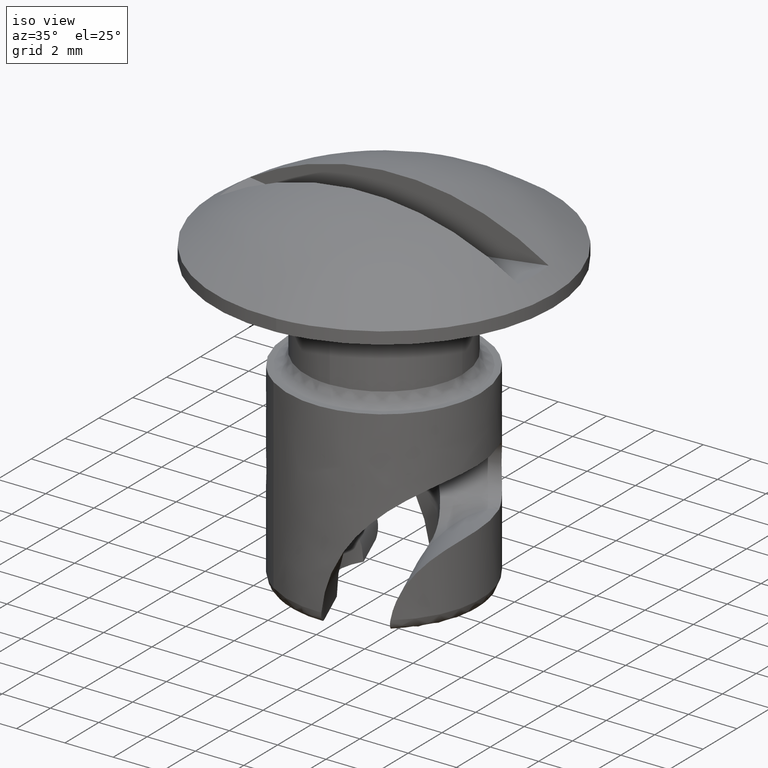
[diagram: clean part render]
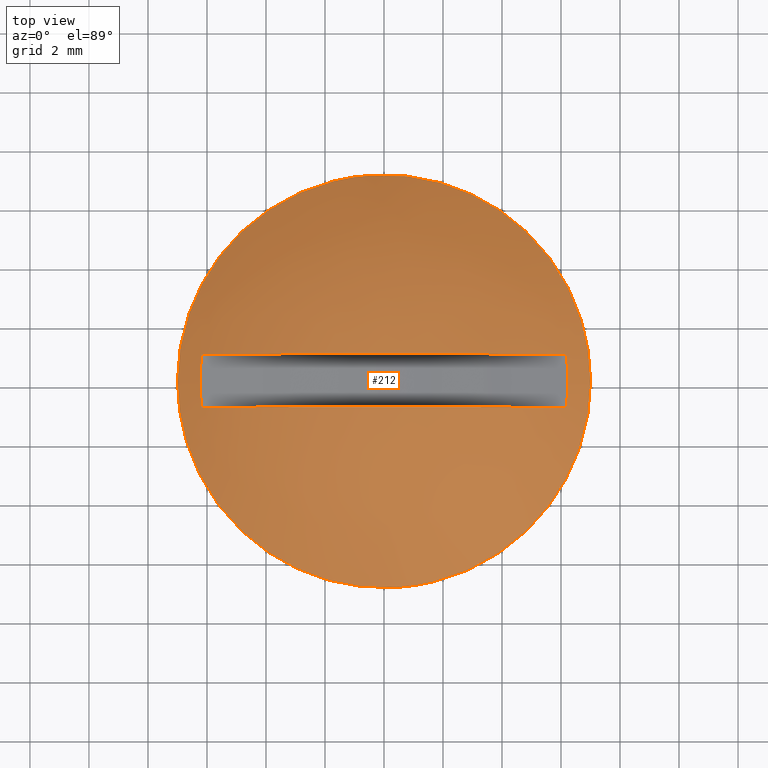
[diagram: tour spotlight — one face highlighted and labeled with its STEP entity id]
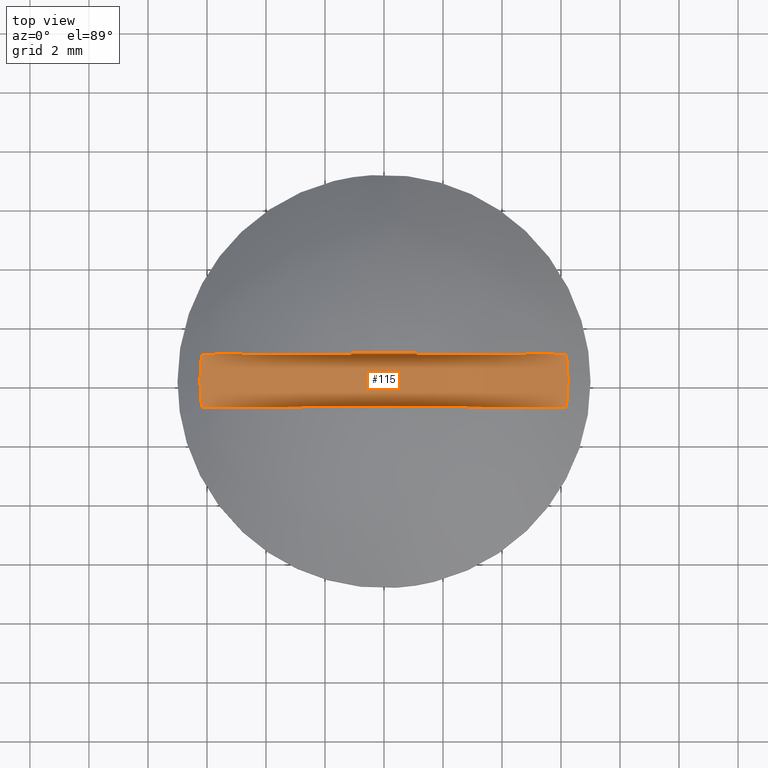
[diagram: tour spotlight — one face highlighted and labeled with its STEP entity id]
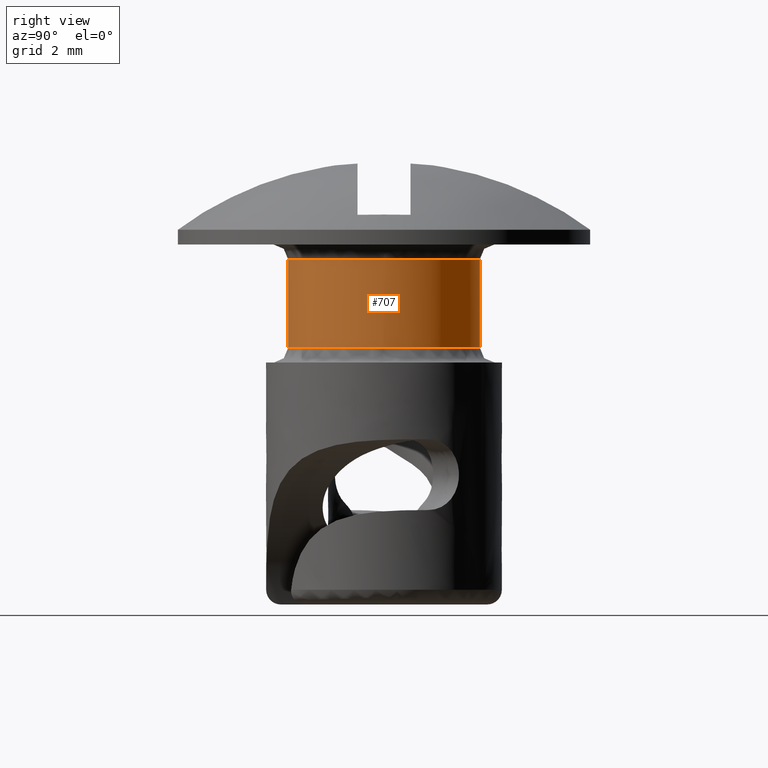
[diagram: tour spotlight — one face highlighted and labeled with its STEP entity id]
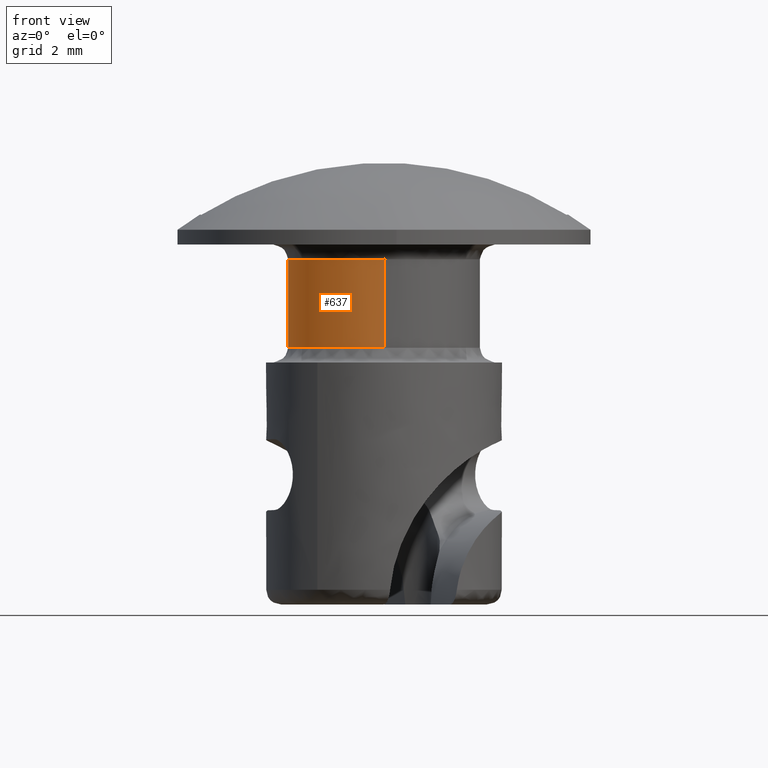
[diagram: tour spotlight — one face highlighted and labeled with its STEP entity id]
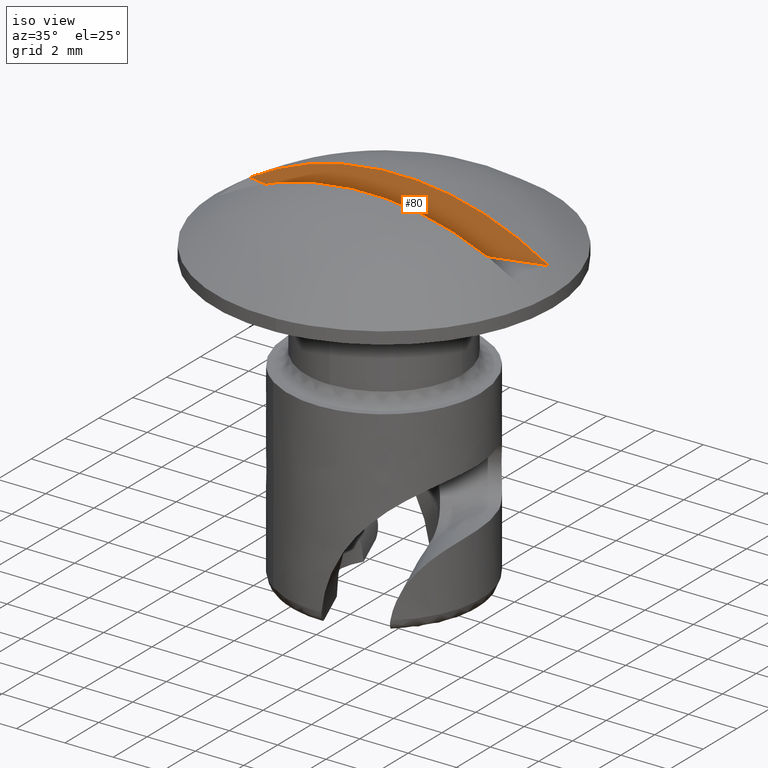
[diagram: tour spotlight — one face highlighted and labeled with its STEP entity id]
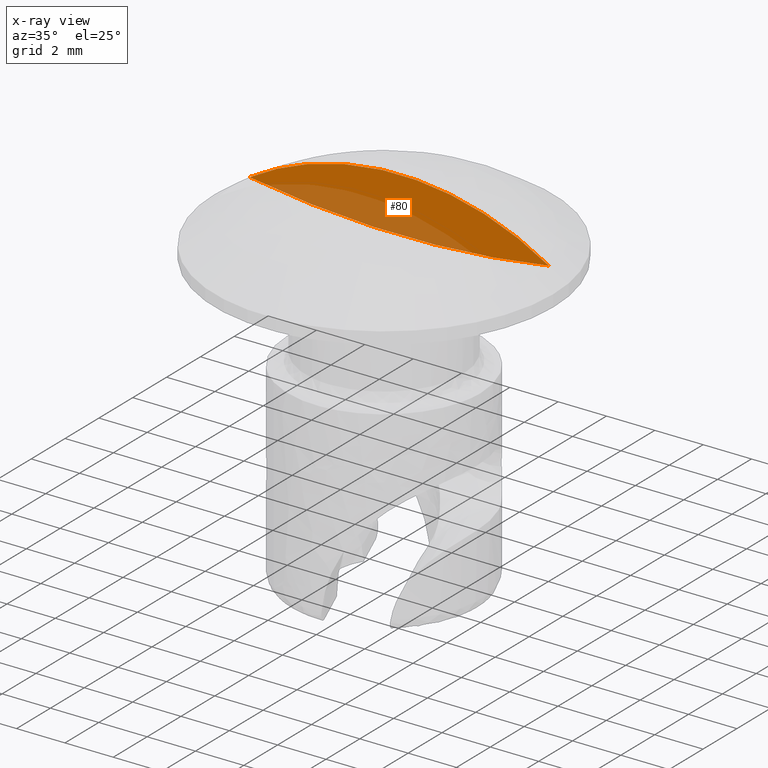
[diagram: x-ray of the same camera — body ghosted, this tour face saturated]
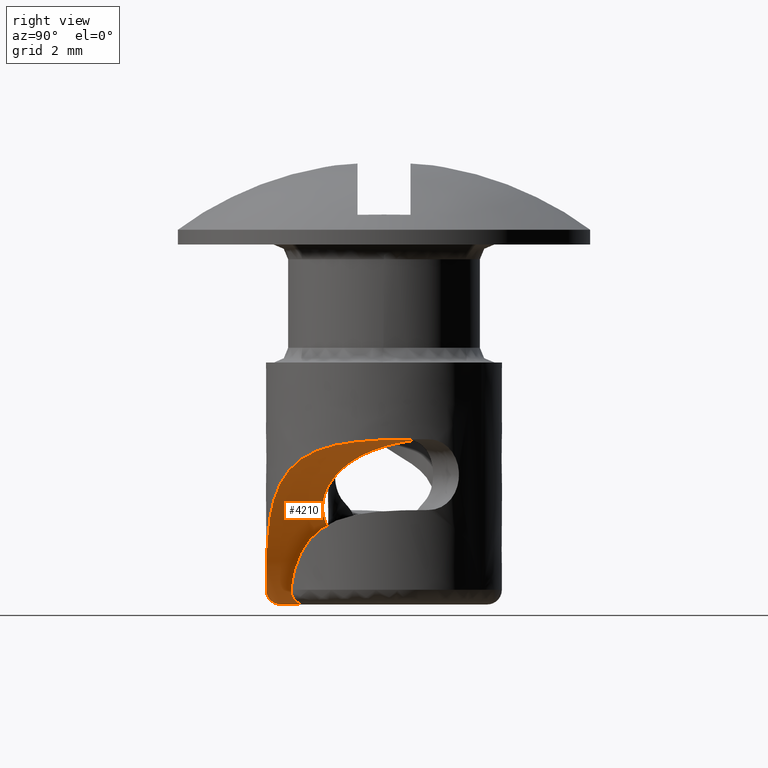
[diagram: tour spotlight — one face highlighted and labeled with its STEP entity id]
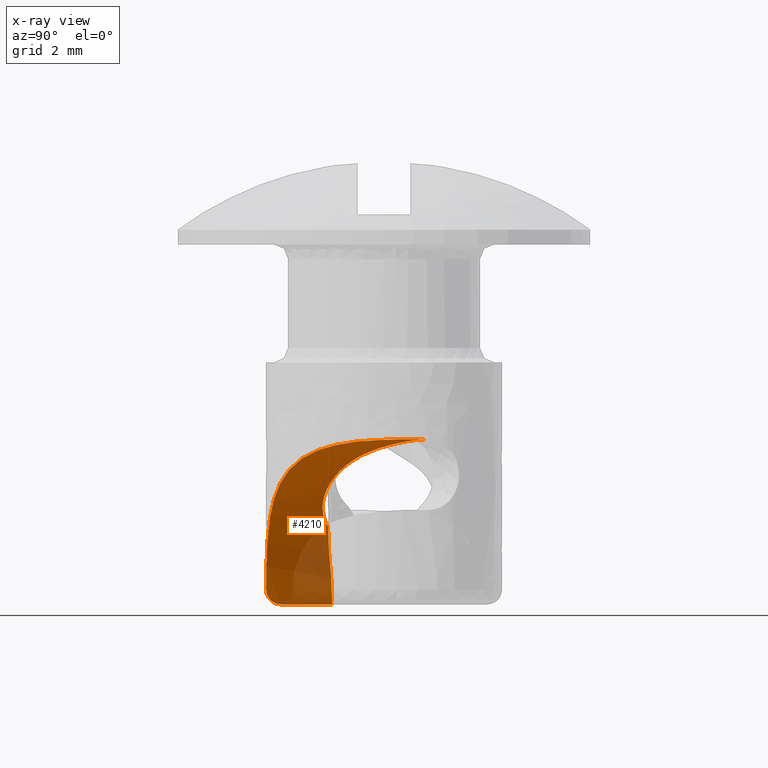
[diagram: x-ray of the same camera — body ghosted, this tour face saturated]
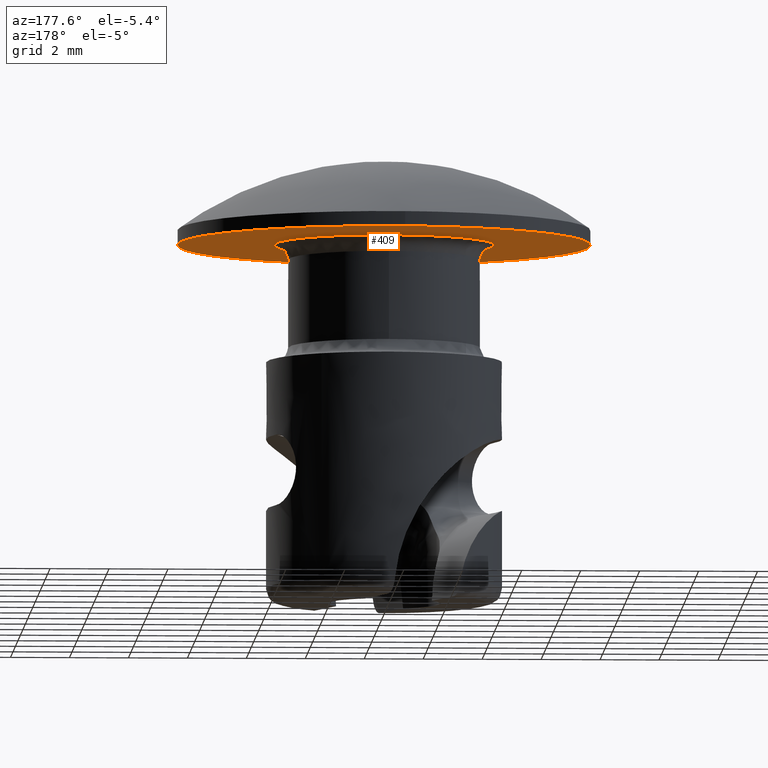
[diagram: tour spotlight — one face highlighted and labeled with its STEP entity id]
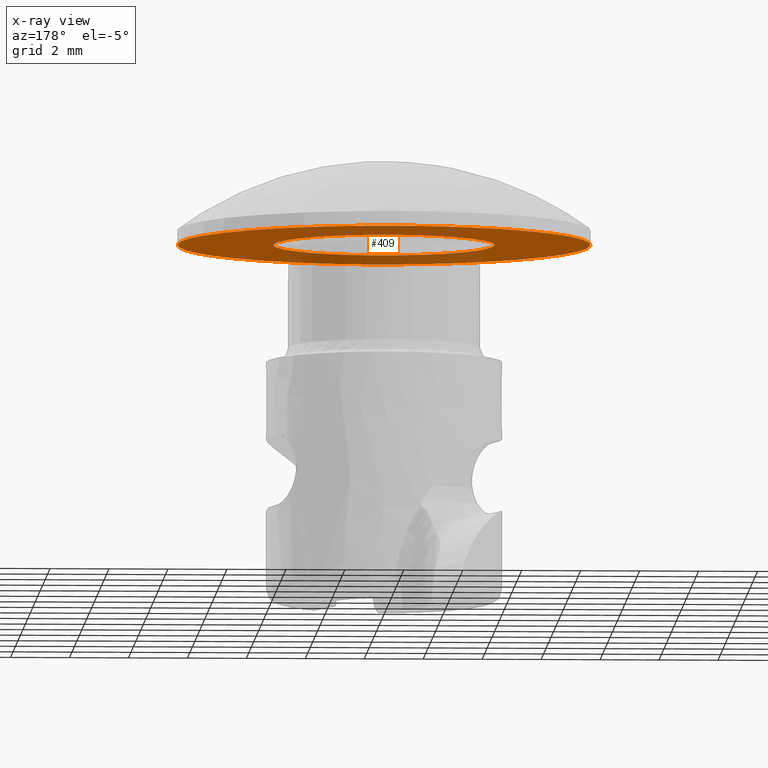
[diagram: x-ray of the same camera — body ghosted, this tour face saturated]
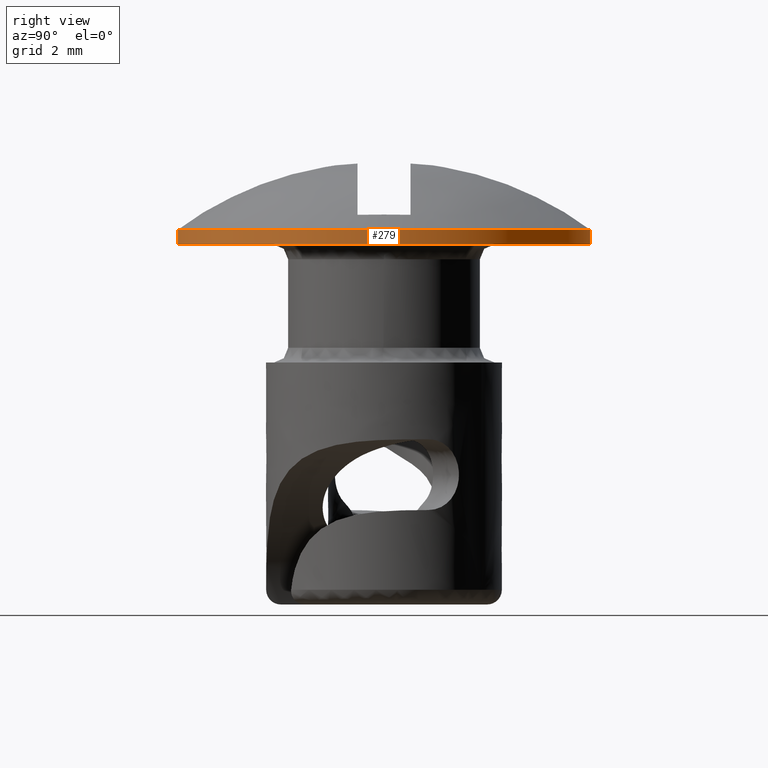
[diagram: tour spotlight — one face highlighted and labeled with its STEP entity id]
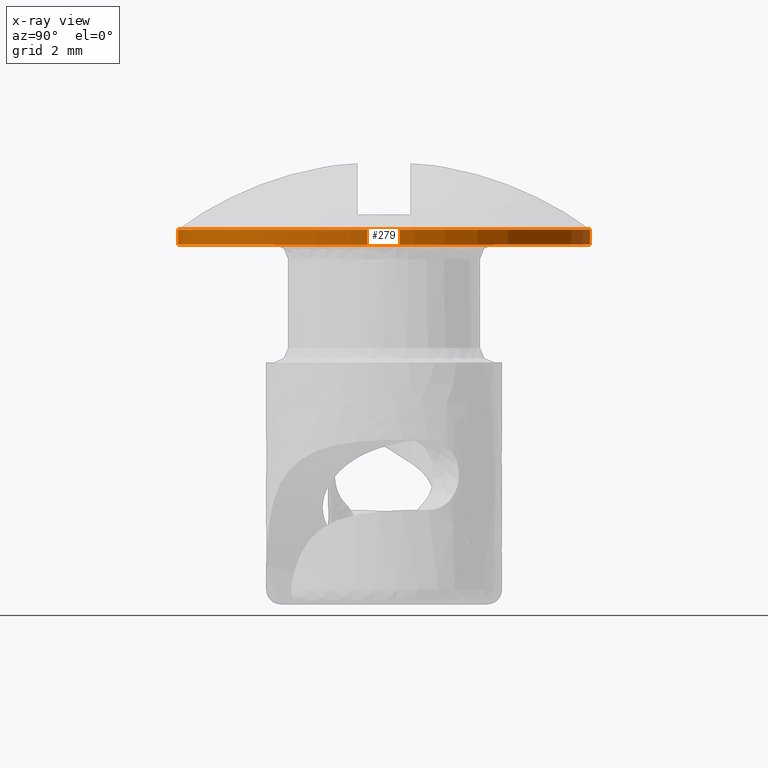
[diagram: x-ray of the same camera — body ghosted, this tour face saturated]
A machine part: a face-by-face anatomy tour. The part has 35 B-rep faces; the first image is the clean iso view, then the 8 largest visible faces are spotlighted one at a time (largest first), each with its STEP entity span.

Face 1 — top view, entity #212. In plain terms, the highlighted face is a freeform B-spline surface patch.
Definition (entity closure, byte-faithful):
#10=CARTESIAN_POINT('',(-6.188140263652630,-0.899993000000000,1.007241764877300));
#11=VERTEX_POINT('',#10);
#12=CARTESIAN_POINT('',(6.188140263652630,-0.899993000000000,1.007241764877300));
#13=VERTEX_POINT('',#12);
#27=CARTESIAN_POINT('',(6.188140263652638,-0.899993000000000,1.007241764877301));
#28=CARTESIAN_POINT('',(4.336809E-015,-0.899993000000000,4.832950620201165));
#29=CARTESIAN_POINT('',(-6.188140263652632,-0.899993000000000,1.007241764877305));
#37=(BOUNDED_CURVE()B_SPLINE_CURVE(2,(#27,#28,#29),.UNSPECIFIED.,.F.,.U.)CURVE()GEOMETRIC_REPRESENTATION_ITEM()QUASI_UNIFORM_CURVE()RATIONAL_B_SPLINE_CURVE((1.0,0.850575323171964,1.0))REPRESENTATION_ITEM(''));
#38=EDGE_CURVE('',#13,#11,#37,.T.);
#48=CARTESIAN_POINT('',(6.188138312163890,0.900010000000019,1.007241442786190));
#49=VERTEX_POINT('',#48);
#50=CARTESIAN_POINT('',(-6.188138312163890,0.900010000000019,1.007241442786190));
#51=VERTEX_POINT('',#50);
#52=CARTESIAN_POINT('',(6.188138312163890,0.900010000000019,1.007241442786190));
#53=CARTESIAN_POINT('',(3.469447E-015,0.900010000000000,4.832948008270046));
#54=CARTESIAN_POINT('',(-6.188138312163883,0.900010000000000,1.007241442786190));
#62=(BOUNDED_CURVE()B_SPLINE_CURVE(2,(#52,#53,#54),.UNSPECIFIED.,.F.,.U.)CURVE()GEOMETRIC_REPRESENTATION_ITEM()QUASI_UNIFORM_CURVE()RATIONAL_B_SPLINE_CURVE((1.0,0.850575389776752,1.0))REPRESENTATION_ITEM(''));
#63=EDGE_CURVE('',#49,#51,#62,.T.);
#96=CARTESIAN_POINT('',(-6.188140263652633,-0.899993000000000,1.007241764877306));
#97=CARTESIAN_POINT('',(-6.222578031573591,-0.599992461646414,1.012925682206770));
#98=CARTESIAN_POINT('',(-6.256576167310548,0.000008576230895,1.018609544404045));
#99=CARTESIAN_POINT('',(-6.222576732931840,0.600009538353602,1.012925466026022));
#100=CARTESIAN_POINT('',(-6.188138312163877,0.900010000000020,1.007241442786188));
#101=B_SPLINE_CURVE_WITH_KNOTS('',3,(#96,#97,#98,#99,#100),.UNSPECIFIED.,.F.,.U.,(4,1,4),(0.0,0.500000000000000,1.0),.UNSPECIFIED.);
#102=EDGE_CURVE('',#11,#51,#101,.T.);
#105=CARTESIAN_POINT('',(6.188138312163890,0.900010000000019,1.007241442786190));
#106=CARTESIAN_POINT('',(6.222576732931836,0.600009538353601,1.012925466026024));
#107=CARTESIAN_POINT('',(6.256576167337600,0.000008576230896,1.018609544398034));
#108=CARTESIAN_POINT('',(6.222578031573598,-0.599992461646414,1.012925682206767));
#109=CARTESIAN_POINT('',(6.188140263652638,-0.899993000000001,1.007241764877303));
#110=B_SPLINE_CURVE_WITH_KNOTS('',3,(#105,#106,#107,#108,#109),.UNSPECIFIED.,.F.,.U.,(4,1,4),(0.0,0.500000000000000,1.0),.UNSPECIFIED.);
#111=EDGE_CURVE('',#49,#13,#110,.T.);
#116=CARTESIAN_POINT('',(-6.763764875158032,-6.763613481463146,-2.088677118601335));
#117=CARTESIAN_POINT('',(-3.772557458990504,-7.544946035288181,0.073356048392765));
#118=CARTESIAN_POINT('',(3.772557649576859,-7.544946035288181,0.073356048392765));
#119=CARTESIAN_POINT('',(6.763765146086783,-6.763613410693908,-2.088677314427595));
#120=CARTESIAN_POINT('',(-7.545075899965885,-3.772453509073201,0.073248083667369));
#121=CARTESIAN_POINT('',(-4.265257953061463,-4.265162483574713,2.800007999999892));
#122=CARTESIAN_POINT('',(4.265258168538622,-4.265162483574713,2.800007999999892));
#123=CARTESIAN_POINT('',(7.545076193071388,-3.772453465041573,0.073247839986656));
#124=CARTESIAN_POINT('',(-7.545075899965885,3.772453357507426,0.073248083667375));
#125=CARTESIAN_POINT('',(-4.265257953061463,4.265162312213378,2.800007999999898));
#126=CARTESIAN_POINT('',(4.265258168538622,4.265162312213379,2.800007999999898));
#127=CARTESIAN_POINT('',(7.545076193071388,3.772453313475799,0.073247839986663));
#128=CARTESIAN_POINT('',(-6.763764931438282,6.763613266000604,-2.088676962871151));
#129=CARTESIAN_POINT('',(-3.772557494007653,7.544945802187799,0.073356242181043));
#130=CARTESIAN_POINT('',(3.772557684594009,7.544945802187801,0.073356242181043));
#131=CARTESIAN_POINT('',(6.763765202367040,6.763613195231373,-2.088677158697417));
#139=(BOUNDED_SURFACE()B_SPLINE_SURFACE(2,2,((#116,#120,#124,#128),(#117,#121,#125,#129),(#118,#122,#126,#130),(#119,#123,#127,#131)),.UNSPECIFIED.,.F.,.F.,.U.)B_SPLINE_SURFACE_WITH_KNOTS((3,1,3),(3,1,3),(0.933526461857557,8.819893458954930,16.706260854464769),(0.933702982813120,8.819893458954928,16.706083618253469),.UNSPECIFIED.)GEOMETRIC_REPRESENTATION_ITEM()RATIONAL_B_SPLINE_SURFACE(((1.261208227011826,1.130607036857177,1.130607036857177,1.261208216517506),(1.130601190154649,1.0,1.0,1.130601179660328),(1.130601190154649,1.0,1.0,1.130601179660328),(1.261208240208137,1.130607050053488,1.130607050053488,1.261208229713816)))REPRESENTATION_ITEM('')SURFACE());
#140=CARTESIAN_POINT('',(0.427339122639508,-6.986943628959751,0.500000000000000));
#141=VERTEX_POINT('',#140);
#142=CARTESIAN_POINT('',(-7.0,0.0,0.500000000000000));
#143=VERTEX_POINT('',#142);
#144=CARTESIAN_POINT('',(0.427339122639508,-6.986943628959752,0.500000000000000));
#145=CARTESIAN_POINT('',(0.213869015120857,-7.000000000000001,0.500000000000000));
#146=CARTESIAN_POINT('',(0.0,-7.0,0.500000000000000));
#147=CARTESIAN_POINT('',(-6.999999999999999,-6.999999999999999,0.500000000000000));
#148=CARTESIAN_POINT('',(-7.0,0.0,0.500000000000000));
#156=(BOUNDED_CURVE()B_SPLINE_CURVE(2,(#144,#145,#146,#147,#148),.UNSPECIFIED.,.F.,.U.)B_SPLINE_CURVE_WITH_KNOTS((3,2,3),(0.739332978395474,0.750000000000000,1.0),.UNSPECIFIED.)CURVE()GEOMETRIC_REPRESENTATION_ITEM()RATIONAL_B_SPLINE_CURVE((0.976072076293241,0.987502806828391,1.0,0.707106781186547,1.0))REPRESENTATION_ITEM(''));
#157=EDGE_CURVE('',#141,#143,#156,.T.);
#158=ORIENTED_EDGE('',*,*,#157,.F.);
#159=CARTESIAN_POINT('',(7.0,0.0,0.500000000000000));
#160=VERTEX_POINT('',#159);
#161=CARTESIAN_POINT('',(7.0,0.0,0.500000000000000));
#162=CARTESIAN_POINT('',(6.999999999999998,-6.584943085961779,0.500000000000000));
#163=CARTESIAN_POINT('',(0.427339122639511,-6.986943628959782,0.500000000000000));
#171=(BOUNDED_CURVE()B_SPLINE_CURVE(2,(#161,#162,#163),.UNSPECIFIED.,.F.,.U.)B_SPLINE_CURVE_WITH_KNOTS((3,3),(0.500000000000000,0.739332978395474),.UNSPECIFIED.)CURVE()GEOMETRIC_REPRESENTATION_ITEM()RATIONAL_B_SPLINE_CURVE((1.0,0.719603974358157,0.976072076293241))REPRESENTATION_ITEM(''));
#172=EDGE_CURVE('',#160,#141,#171,.T.);
#173=ORIENTED_EDGE('',*,*,#172,.F.);
#174=CARTESIAN_POINT('',(-0.427339122639509,6.986943628959751,0.500000000000000));
#175=VERTEX_POINT('',#174);
#176=CARTESIAN_POINT('',(-0.427339122639509,6.986943628959752,0.500000000000000));
#177=CARTESIAN_POINT('',(-0.213869015120857,7.000000000000001,0.500000000000000));
#178=CARTESIAN_POINT('',(0.0,7.0,0.500000000000000));
#179=CARTESIAN_POINT('',(6.999999999999999,6.999999999999999,0.500000000000000));
#180=CARTESIAN_POINT('',(7.0,0.0,0.500000000000000));
#188=(BOUNDED_CURVE()B_SPLINE_CURVE(2,(#176,#177,#178,#179,#180),.UNSPECIFIED.,.F.,.U.)B_SPLINE_CURVE_WITH_KNOTS((3,2,3),(0.239332978395474,0.250000000000000,0.500000000000000),.UNSPECIFIED.)CURVE()GEOMETRIC_REPRESENTATION_ITEM()RATIONAL_B_SPLINE_CURVE((0.976072076293241,0.987502806828391,1.0,0.707106781186547,1.0))REPRESENTATION_ITEM(''));
#189=EDGE_CURVE('',#175,#160,#188,.T.);
#190=ORIENTED_EDGE('',*,*,#189,.F.);
#191=CARTESIAN_POINT('',(-7.0,0.0,0.500000000000000));
#192=CARTESIAN_POINT('',(-6.999999999999998,6.584943085961779,0.500000000000000));
#193=CARTESIAN_POINT('',(-0.427339122639511,6.986943628959782,0.500000000000000));
#201=(BOUNDED_CURVE()B_SPLINE_CURVE(2,(#191,#192,#193),.UNSPECIFIED.,.F.,.U.)B_SPLINE_CURVE_WITH_KNOTS((3,3),(0.0,0.239332978395474),.UNSPECIFIED.)CURVE()GEOMETRIC_REPRESENTATION_ITEM()RATIONAL_B_SPLINE_CURVE((1.0,0.719603974358157,0.976072076293241))REPRESENTATION_ITEM(''));
#202=EDGE_CURVE('',#143,#175,#201,.T.);
#203=ORIENTED_EDGE('',*,*,#202,.F.);
#204=EDGE_LOOP('',(#158,#173,#190,#203));
#205=FACE_OUTER_BOUND('',#204,.T.);
#206=ORIENTED_EDGE('',*,*,#63,.F.);
#207=ORIENTED_EDGE('',*,*,#111,.T.);
#208=ORIENTED_EDGE('',*,*,#38,.T.);
#209=ORIENTED_EDGE('',*,*,#102,.T.);
#210=EDGE_LOOP('',(#206,#207,#208,#209));
#211=FACE_BOUND('',#210,.T.);
#212=ADVANCED_FACE('',(#205,#211),#139,.T.);

Face 2 — top view, entity #115. In plain terms, the highlighted face is a freeform B-spline surface patch.
Definition (entity closure, byte-faithful):
#10=CARTESIAN_POINT('',(-6.188140263652630,-0.899993000000000,1.007241764877300));
#11=VERTEX_POINT('',#10);
#12=CARTESIAN_POINT('',(6.188140263652630,-0.899993000000000,1.007241764877300));
#13=VERTEX_POINT('',#12);
#14=CARTESIAN_POINT('',(-6.188140263652636,-0.899992999999988,1.007241764877299));
#15=CARTESIAN_POINT('',(-9.540979E-015,-0.899992999999988,-0.014104269002023));
#16=CARTESIAN_POINT('',(6.188140263652626,-0.899992999999988,1.007241764877299));
#24=(BOUNDED_CURVE()B_SPLINE_CURVE(2,(#14,#15,#16),.UNSPECIFIED.,.F.,.U.)CURVE()GEOMETRIC_REPRESENTATION_ITEM()QUASI_UNIFORM_CURVE()RATIONAL_B_SPLINE_CURVE((1.0,0.986651532503229,1.0))REPRESENTATION_ITEM(''));
#25=EDGE_CURVE('',#11,#13,#24,.T.);
#48=CARTESIAN_POINT('',(6.188138312163890,0.900010000000019,1.007241442786190));
#49=VERTEX_POINT('',#48);
#50=CARTESIAN_POINT('',(-6.188138312163890,0.900010000000019,1.007241442786190));
#51=VERTEX_POINT('',#50);
#65=CARTESIAN_POINT('',(-6.188138312163890,0.900010000000019,1.007241442786190));
#66=CARTESIAN_POINT('',(-8.673617E-015,0.900010000000062,-0.014103938136785));
#67=CARTESIAN_POINT('',(6.188138312163881,0.900010000000062,1.007241442786189));
#75=(BOUNDED_CURVE()B_SPLINE_CURVE(2,(#65,#66,#67),.UNSPECIFIED.,.F.,.U.)CURVE()GEOMETRIC_REPRESENTATION_ITEM()QUASI_UNIFORM_CURVE()RATIONAL_B_SPLINE_CURVE((1.0,0.986651540979311,1.0))REPRESENTATION_ITEM(''));
#76=EDGE_CURVE('',#51,#49,#75,.T.);
#81=CARTESIAN_POINT('',(6.853035396976402,0.945010075000064,1.123056494039169));
#82=CARTESIAN_POINT('',(6.853035396976402,-0.946118076875001,1.123056494039169));
#83=CARTESIAN_POINT('',(-0.000122436915417,0.945010075000064,-0.133465008561412));
#84=CARTESIAN_POINT('',(-0.000122436915417,-0.946118076875001,-0.133465008561412));
#85=CARTESIAN_POINT('',(-6.853272306350718,0.945010075000064,1.123099931976623));
#86=CARTESIAN_POINT('',(-6.853272306350718,-0.946118076875001,1.123099931976623));
#94=(BOUNDED_SURFACE()B_SPLINE_SURFACE(1,2,((#81,#83,#85),(#82,#84,#86)),.UNSPECIFIED.,.F.,.F.,.U.)B_SPLINE_SURFACE_WITH_KNOTS((2,2),(3,3),(0.0,1.0),(0.992711938214302,14.812335573840141),.UNSPECIFIED.)GEOMETRIC_REPRESENTATION_ITEM()RATIONAL_B_SPLINE_SURFACE(((0.997453009303786,0.980899179635699,0.997048828153224),(0.997453009303786,0.980899179635699,0.997048828153224)))REPRESENTATION_ITEM('')SURFACE());
#95=ORIENTED_EDGE('',*,*,#76,.F.);
#96=CARTESIAN_POINT('',(-6.188140263652633,-0.899993000000000,1.007241764877306));
#97=CARTESIAN_POINT('',(-6.222578031573591,-0.599992461646414,1.012925682206770));
#98=CARTESIAN_POINT('',(-6.256576167310548,0.000008576230895,1.018609544404045));
#99=CARTESIAN_POINT('',(-6.222576732931840,0.600009538353602,1.012925466026022));
#100=CARTESIAN_POINT('',(-6.188138312163877,0.900010000000020,1.007241442786188));
#101=B_SPLINE_CURVE_WITH_KNOTS('',3,(#96,#97,#98,#99,#100),.UNSPECIFIED.,.F.,.U.,(4,1,4),(0.0,0.500000000000000,1.0),.UNSPECIFIED.);
#102=EDGE_CURVE('',#11,#51,#101,.T.);
#103=ORIENTED_EDGE('',*,*,#102,.F.);
#104=ORIENTED_EDGE('',*,*,#25,.T.);
#105=CARTESIAN_POINT('',(6.188138312163890,0.900010000000019,1.007241442786190));
#106=CARTESIAN_POINT('',(6.222576732931836,0.600009538353601,1.012925466026024));
#107=CARTESIAN_POINT('',(6.256576167337600,0.000008576230896,1.018609544398034));
#108=CARTESIAN_POINT('',(6.222578031573598,-0.599992461646414,1.012925682206767));
#109=CARTESIAN_POINT('',(6.188140263652638,-0.899993000000001,1.007241764877303));
#110=B_SPLINE_CURVE_WITH_KNOTS('',3,(#105,#106,#107,#108,#109),.UNSPECIFIED.,.F.,.U.,(4,1,4),(0.0,0.500000000000000,1.0),.UNSPECIFIED.);
#111=EDGE_CURVE('',#49,#13,#110,.T.);
#112=ORIENTED_EDGE('',*,*,#111,.F.);
#113=EDGE_LOOP('',(#95,#103,#104,#112));
#114=FACE_OUTER_BOUND('',#113,.T.);
#115=ADVANCED_FACE('',(#114),#94,.F.);

Face 3 — right view, entity #707. In plain terms, the highlighted face is a freeform B-spline surface patch.
Definition (entity closure, byte-faithful):
#433=CARTESIAN_POINT('',(3.249999999999999,-2.270239E-016,-0.499999999981142));
#434=VERTEX_POINT('',#433);
#448=CARTESIAN_POINT('',(-0.028359646048179,3.249876263871207,-0.499999999981142));
#449=VERTEX_POINT('',#448);
#450=CARTESIAN_POINT('',(-0.028359646048179,3.249876263871208,-0.499999999981142));
#451=CARTESIAN_POINT('',(-0.014180092960981,3.249999999999609,-0.499999999981142));
#452=CARTESIAN_POINT('',(3.378379E-015,3.249999999999610,-0.499999999981142));
#453=CARTESIAN_POINT('',(3.250000000000001,3.249999999999806,-0.499999999981142));
#454=CARTESIAN_POINT('',(3.249999999999999,-2.270239E-016,-0.499999999981142));
#462=(BOUNDED_CURVE()B_SPLINE_CURVE(2,(#450,#451,#452,#453,#454),.UNSPECIFIED.,.F.,.U.)B_SPLINE_CURVE_WITH_KNOTS((3,2,3),(0.748460192076996,0.750000000000000,1.0),.UNSPECIFIED.)CURVE()GEOMETRIC_REPRESENTATION_ITEM()RATIONAL_B_SPLINE_CURVE((0.996414228082016,0.998196002804308,1.0,0.707106781186547,1.0))REPRESENTATION_ITEM(''));
#463=EDGE_CURVE('',#449,#434,#462,.T.);
#523=CARTESIAN_POINT('',(0.028359646048180,-3.249876263871207,-0.499999999981142));
#524=VERTEX_POINT('',#523);
#540=CARTESIAN_POINT('',(3.249999999999999,-2.270239E-016,-0.499999999981142));
#541=CARTESIAN_POINT('',(3.249999999999997,-3.221763015023038,-0.499999999981142));
#542=CARTESIAN_POINT('',(0.028359646048180,-3.249876263871208,-0.499999999981142));
#550=(BOUNDED_CURVE()B_SPLINE_CURVE(2,(#540,#541,#542),.UNSPECIFIED.,.F.,.U.)B_SPLINE_CURVE_WITH_KNOTS((3,3),(0.0,0.248460192076996),.UNSPECIFIED.)CURVE()GEOMETRIC_REPRESENTATION_ITEM()RATIONAL_B_SPLINE_CURVE((1.0,0.708910778382239,0.996414228082016))REPRESENTATION_ITEM(''));
#551=EDGE_CURVE('',#434,#524,#550,.T.);
#574=CARTESIAN_POINT('',(-0.028359794209335,3.249876262578363,-3.499992000015144));
#575=VERTEX_POINT('',#574);
#606=CARTESIAN_POINT('',(0.028359794209336,-3.249876262578363,-3.499992000015144));
#607=VERTEX_POINT('',#606);
#623=CARTESIAN_POINT('',(0.028359794209336,-3.249876262578363,-3.499992000015144));
#624=CARTESIAN_POINT('',(0.028359646048180,-3.249876263871207,-0.499999999981142));
#625=QUASI_UNIFORM_CURVE('',1,(#623,#624),.UNSPECIFIED.,.F.,.U.);
#626=EDGE_CURVE('',#607,#524,#625,.T.);
#630=CARTESIAN_POINT('',(-0.028359794209335,3.249876262578363,-3.499992000015144));
#631=CARTESIAN_POINT('',(-0.028359646048179,3.249876263871207,-0.499999999981142));
#632=QUASI_UNIFORM_CURVE('',1,(#630,#631),.UNSPECIFIED.,.F.,.U.);
#633=EDGE_CURVE('',#575,#449,#632,.T.);
#638=CARTESIAN_POINT('',(0.028361240369715,-3.249876249958556,-3.574991800030896));
#639=CARTESIAN_POINT('',(3.278237490328270,-3.221515009588841,-3.574991800030895));
#640=CARTESIAN_POINT('',(3.249876249958556,0.028361240369715,-3.574991800030896));
#641=CARTESIAN_POINT('',(3.221515009588841,3.278237490328270,-3.574991800030895));
#642=CARTESIAN_POINT('',(-0.028361240369715,3.249876249958556,-3.574991800030896));
#643=CARTESIAN_POINT('',(0.028361240369715,-3.249876249958556,-0.423125204979898));
#644=CARTESIAN_POINT('',(3.278237490328270,-3.221515009588841,-0.423125204979898));
#645=CARTESIAN_POINT('',(3.249876249958556,0.028361240369715,-0.423125204979898));
#646=CARTESIAN_POINT('',(3.221515009588841,3.278237490328270,-0.423125204979898));
#647=CARTESIAN_POINT('',(-0.028361240369715,3.249876249958556,-0.423125204979898));
#655=(BOUNDED_SURFACE()B_SPLINE_SURFACE(2,1,((#638,#643),(#639,#644),(#640,#645),(#641,#646),(#642,#647)),.UNSPECIFIED.,.F.,.F.,.U.)B_SPLINE_SURFACE_WITH_KNOTS((3,2,3),(2,2),(0.0,5.384776310850235,10.769552621700470),(0.0,3.151866595050998),.UNSPECIFIED.)GEOMETRIC_REPRESENTATION_ITEM()RATIONAL_B_SPLINE_SURFACE(((1.0,1.0),(0.707106781186548,0.707106781186548),(1.0,1.0),(0.707106781186548,0.707106781186548),(1.0,1.0)))REPRESENTATION_ITEM('')SURFACE());
#656=CARTESIAN_POINT('',(3.250000000000000,0.0,-3.499992000000175));
#657=VERTEX_POINT('',#656);
#658=CARTESIAN_POINT('',(3.250000000000000,0.0,-3.499992000000175));
#659=CARTESIAN_POINT('',(3.250000000000001,3.249999999999840,-3.499992000000265));
#660=CARTESIAN_POINT('',(3.027298E-015,3.249999999999679,-3.499992000015016));
#661=CARTESIAN_POINT('',(-0.014180167045790,3.249999999999678,-3.499992000015080));
#662=CARTESIAN_POINT('',(-0.028359794209335,3.249876262578364,-3.499992000015144));
#670=(BOUNDED_CURVE()B_SPLINE_CURVE(2,(#658,#659,#660,#661,#662),.UNSPECIFIED.,.F.,.U.)B_SPLINE_CURVE_WITH_KNOTS((3,2,3),(0.0,0.250000000000000,0.251539815953316),.UNSPECIFIED.)CURVE()GEOMETRIC_REPRESENTATION_ITEM()RATIONAL_B_SPLINE_CURVE((1.0,0.707106781186547,1.0,0.998195993396212,0.996414209497610))REPRESENTATION_ITEM(''));
#671=EDGE_CURVE('',#657,#575,#670,.T.);
#672=ORIENTED_EDGE('',*,*,#671,.T.);
#673=ORIENTED_EDGE('',*,*,#633,.T.);
#674=ORIENTED_EDGE('',*,*,#463,.T.);
#675=ORIENTED_EDGE('',*,*,#551,.T.);
#676=ORIENTED_EDGE('',*,*,#626,.F.);
#677=CARTESIAN_POINT('',(3.249743393662270,-0.040839629631425,-3.499992000029681));
#678=VERTEX_POINT('',#677);
#679=CARTESIAN_POINT('',(0.028359794209336,-3.249876262578364,-3.499992000015144));
#680=CARTESIAN_POINT('',(3.209764216664997,-3.222113982593769,-3.499992000029588));
#681=CARTESIAN_POINT('',(3.249743393662269,-0.040839629631425,-3.499992000029681));
#689=(BOUNDED_CURVE()B_SPLINE_CURVE(2,(#679,#680,#681),.UNSPECIFIED.,.F.,.U.)B_SPLINE_CURVE_WITH_KNOTS((3,3),(0.751539815953316,0.997784295921158),.UNSPECIFIED.)CURVE()GEOMETRIC_REPRESENTATION_ITEM()RATIONAL_B_SPLINE_CURVE((0.996414209497610,0.711474669430374,0.994854295642701))REPRESENTATION_ITEM(''));
#690=EDGE_CURVE('',#607,#678,#689,.T.);
#691=ORIENTED_EDGE('',*,*,#690,.T.);
#692=CARTESIAN_POINT('',(3.249743393662269,-0.040839629631425,-3.499992000029681));
#693=CARTESIAN_POINT('',(3.250000000000000,-0.020420620978907,-3.499992000014929));
#694=CARTESIAN_POINT('',(3.250000000000000,0.0,-3.499992000000175));
#702=(BOUNDED_CURVE()B_SPLINE_CURVE(2,(#692,#693,#694),.UNSPECIFIED.,.F.,.U.)B_SPLINE_CURVE_WITH_KNOTS((3,3),(0.997784295921158,1.0),.UNSPECIFIED.)CURVE()GEOMETRIC_REPRESENTATION_ITEM()RATIONAL_B_SPLINE_CURVE((0.994854295642701,0.997404141201640,1.0))REPRESENTATION_ITEM(''));
#703=EDGE_CURVE('',#678,#657,#702,.T.);
#704=ORIENTED_EDGE('',*,*,#703,.T.);
#705=EDGE_LOOP('',(#672,#673,#674,#675,#676,#691,#704));
#706=FACE_OUTER_BOUND('',#705,.T.);
#707=ADVANCED_FACE('',(#706),#655,.T.);

Face 4 — front view, entity #637. In plain terms, the highlighted face is a freeform B-spline surface patch.
Definition (entity closure, byte-faithful):
#448=CARTESIAN_POINT('',(-0.028359646048179,3.249876263871207,-0.499999999981142));
#449=VERTEX_POINT('',#448);
#465=CARTESIAN_POINT('',(-3.249999999999999,5.170135E-018,-0.499999999981142));
#466=VERTEX_POINT('',#465);
#467=CARTESIAN_POINT('',(-3.249999999999999,5.170135E-018,-0.499999999981142));
#468=CARTESIAN_POINT('',(-3.249999999999997,3.221763015023039,-0.499999999981142));
#469=CARTESIAN_POINT('',(-0.028359646048179,3.249876263871208,-0.499999999981142));
#477=(BOUNDED_CURVE()B_SPLINE_CURVE(2,(#467,#468,#469),.UNSPECIFIED.,.F.,.U.)B_SPLINE_CURVE_WITH_KNOTS((3,3),(0.500000000000000,0.748460192076996),.UNSPECIFIED.)CURVE()GEOMETRIC_REPRESENTATION_ITEM()RATIONAL_B_SPLINE_CURVE((1.0,0.708910778382239,0.996414228082016))REPRESENTATION_ITEM(''));
#478=EDGE_CURVE('',#466,#449,#477,.T.);
#523=CARTESIAN_POINT('',(0.028359646048180,-3.249876263871207,-0.499999999981142));
#524=VERTEX_POINT('',#523);
#525=CARTESIAN_POINT('',(0.028359646048180,-3.249876263871208,-0.499999999981142));
#526=CARTESIAN_POINT('',(0.014180092960981,-3.249999999999609,-0.499999999981142));
#527=CARTESIAN_POINT('',(-3.730725E-015,-3.249999999999610,-0.499999999981142));
#528=CARTESIAN_POINT('',(-3.250000000000001,-3.249999999999806,-0.499999999981142));
#529=CARTESIAN_POINT('',(-3.249999999999999,5.170135E-018,-0.499999999981142));
#537=(BOUNDED_CURVE()B_SPLINE_CURVE(2,(#525,#526,#527,#528,#529),.UNSPECIFIED.,.F.,.U.)B_SPLINE_CURVE_WITH_KNOTS((3,2,3),(0.248460192076996,0.250000000000000,0.500000000000000),.UNSPECIFIED.)CURVE()GEOMETRIC_REPRESENTATION_ITEM()RATIONAL_B_SPLINE_CURVE((0.996414228082016,0.998196002804308,1.0,0.707106781186547,1.0))REPRESENTATION_ITEM(''));
#538=EDGE_CURVE('',#524,#466,#537,.T.);
#556=CARTESIAN_POINT('',(-0.028361240369715,3.249876249958556,-3.574991800030896));
#557=CARTESIAN_POINT('',(-3.278237490328270,3.221515009588841,-3.574991800030895));
#558=CARTESIAN_POINT('',(-3.249876249958556,-0.028361240369715,-3.574991800030896));
#559=CARTESIAN_POINT('',(-3.221515009588841,-3.278237490328270,-3.574991800030895));
#560=CARTESIAN_POINT('',(0.028361240369715,-3.249876249958556,-3.574991800030896));
#561=CARTESIAN_POINT('',(-0.028361240369715,3.249876249958556,-0.423125204979898));
#562=CARTESIAN_POINT('',(-3.278237490328270,3.221515009588841,-0.423125204979898));
#563=CARTESIAN_POINT('',(-3.249876249958556,-0.028361240369715,-0.423125204979898));
#564=CARTESIAN_POINT('',(-3.221515009588841,-3.278237490328270,-0.423125204979898));
#565=CARTESIAN_POINT('',(0.028361240369715,-3.249876249958556,-0.423125204979898));
#573=(BOUNDED_SURFACE()B_SPLINE_SURFACE(2,1,((#556,#561),(#557,#562),(#558,#563),(#559,#564),(#560,#565)),.UNSPECIFIED.,.F.,.F.,.U.)B_SPLINE_SURFACE_WITH_KNOTS((3,2,3),(2,2),(0.0,5.384776310850235,10.769552621700470),(0.0,3.151866595050998),.UNSPECIFIED.)GEOMETRIC_REPRESENTATION_ITEM()RATIONAL_B_SPLINE_SURFACE(((1.0,1.0),(0.707106781186548,0.707106781186548),(1.0,1.0),(0.707106781186548,0.707106781186548),(1.0,1.0)))REPRESENTATION_ITEM('')SURFACE());
#574=CARTESIAN_POINT('',(-0.028359794209335,3.249876262578363,-3.499992000015144));
#575=VERTEX_POINT('',#574);
#576=CARTESIAN_POINT('',(-3.249743393662270,0.040839629631426,-3.499992000029682));
#577=VERTEX_POINT('',#576);
#578=CARTESIAN_POINT('',(-0.028359794209335,3.249876262578364,-3.499992000015144));
#579=CARTESIAN_POINT('',(-3.209764216664997,3.222113982593769,-3.499992000029588));
#580=CARTESIAN_POINT('',(-3.249743393662269,0.040839629631426,-3.499992000029682));
#588=(BOUNDED_CURVE()B_SPLINE_CURVE(2,(#578,#579,#580),.UNSPECIFIED.,.F.,.U.)B_SPLINE_CURVE_WITH_KNOTS((3,3),(0.251539815953316,0.497784295921158),.UNSPECIFIED.)CURVE()GEOMETRIC_REPRESENTATION_ITEM()RATIONAL_B_SPLINE_CURVE((0.996414209497610,0.711474669430374,0.994854295642701))REPRESENTATION_ITEM(''));
#589=EDGE_CURVE('',#575,#577,#588,.T.);
#590=ORIENTED_EDGE('',*,*,#589,.T.);
#591=CARTESIAN_POINT('',(-3.250000000000000,0.0,-3.499992000000175));
#592=VERTEX_POINT('',#591);
#593=CARTESIAN_POINT('',(-3.249743393662269,0.040839629631426,-3.499992000029682));
#594=CARTESIAN_POINT('',(-3.250000000000000,0.020420620978907,-3.499992000014929));
#595=CARTESIAN_POINT('',(-3.250000000000000,0.0,-3.499992000000175));
#603=(BOUNDED_CURVE()B_SPLINE_CURVE(2,(#593,#594,#595),.UNSPECIFIED.,.F.,.U.)B_SPLINE_CURVE_WITH_KNOTS((3,3),(0.497784295921158,0.500000000000000),.UNSPECIFIED.)CURVE()GEOMETRIC_REPRESENTATION_ITEM()RATIONAL_B_SPLINE_CURVE((0.994854295642701,0.997404141201640,1.0))REPRESENTATION_ITEM(''));
#604=EDGE_CURVE('',#577,#592,#603,.T.);
#605=ORIENTED_EDGE('',*,*,#604,.T.);
#606=CARTESIAN_POINT('',(0.028359794209336,-3.249876262578363,-3.499992000015144));
#607=VERTEX_POINT('',#606);
#608=CARTESIAN_POINT('',(-3.250000000000000,0.0,-3.499992000000175));
#609=CARTESIAN_POINT('',(-3.250000000000001,-3.249999999999842,-3.499992000000265));
#610=CARTESIAN_POINT('',(-2.578229E-015,-3.249999999999679,-3.499992000015015));
#611=CARTESIAN_POINT('',(0.014180167045790,-3.249999999999678,-3.499992000015080));
#612=CARTESIAN_POINT('',(0.028359794209336,-3.249876262578364,-3.499992000015144));
#620=(BOUNDED_CURVE()B_SPLINE_CURVE(2,(#608,#609,#610,#611,#612),.UNSPECIFIED.,.F.,.U.)B_SPLINE_CURVE_WITH_KNOTS((3,2,3),(0.500000000000000,0.750000000000000,0.751539815953316),.UNSPECIFIED.)CURVE()GEOMETRIC_REPRESENTATION_ITEM()RATIONAL_B_SPLINE_CURVE((1.0,0.707106781186547,1.0,0.998195993396212,0.996414209497610))REPRESENTATION_ITEM(''));
#621=EDGE_CURVE('',#592,#607,#620,.T.);
#622=ORIENTED_EDGE('',*,*,#621,.T.);
#623=CARTESIAN_POINT('',(0.028359794209336,-3.249876262578363,-3.499992000015144));
#624=CARTESIAN_POINT('',(0.028359646048180,-3.249876263871207,-0.499999999981142));
#625=QUASI_UNIFORM_CURVE('',1,(#623,#624),.UNSPECIFIED.,.F.,.U.);
#626=EDGE_CURVE('',#607,#524,#625,.T.);
#627=ORIENTED_EDGE('',*,*,#626,.T.);
#628=ORIENTED_EDGE('',*,*,#538,.T.);
#629=ORIENTED_EDGE('',*,*,#478,.T.);
#630=CARTESIAN_POINT('',(-0.028359794209335,3.249876262578363,-3.499992000015144));
#631=CARTESIAN_POINT('',(-0.028359646048179,3.249876263871207,-0.499999999981142));
#632=QUASI_UNIFORM_CURVE('',1,(#630,#631),.UNSPECIFIED.,.F.,.U.);
#633=EDGE_CURVE('',#575,#449,#632,.T.);
#634=ORIENTED_EDGE('',*,*,#633,.F.);
#635=EDGE_LOOP('',(#590,#605,#622,#627,#628,#629,#634));
#636=FACE_OUTER_BOUND('',#635,.T.);
#637=ADVANCED_FACE('',(#636),#573,.T.);

Face 5 — iso view, entity #80. An x-ray twin of the same camera follows (body ghosted, this face saturated) — the face is partly hidden behind the body. In plain terms, the highlighted face is a freeform B-spline surface patch.
Definition (entity closure, byte-faithful):
#43=CARTESIAN_POINT('',(-6.806333305561437,0.900010000000000,2.878810278233819));
#44=CARTESIAN_POINT('',(6.806333637519044,0.900010000000000,2.878810278233819));
#45=CARTESIAN_POINT('',(-6.806333305561437,0.900010000000000,0.386831151187017));
#46=CARTESIAN_POINT('',(6.806333637519044,0.900010000000000,0.386831151187017));
#47=B_SPLINE_SURFACE_WITH_KNOTS('',1,1,((#43,#45),(#44,#46)),.UNSPECIFIED.,.F.,.F.,.U.,(2,2),(2,2),(0.0,13.612666943080480),(0.0,2.491979127046801),.UNSPECIFIED.);
#48=CARTESIAN_POINT('',(6.188138312163890,0.900010000000019,1.007241442786190));
#49=VERTEX_POINT('',#48);
#50=CARTESIAN_POINT('',(-6.188138312163890,0.900010000000019,1.007241442786190));
#51=VERTEX_POINT('',#50);
#52=CARTESIAN_POINT('',(6.188138312163890,0.900010000000019,1.007241442786190));
#53=CARTESIAN_POINT('',(3.469447E-015,0.900010000000000,4.832948008270046));
#54=CARTESIAN_POINT('',(-6.188138312163883,0.900010000000000,1.007241442786190));
#62=(BOUNDED_CURVE()B_SPLINE_CURVE(2,(#52,#53,#54),.UNSPECIFIED.,.F.,.U.)CURVE()GEOMETRIC_REPRESENTATION_ITEM()QUASI_UNIFORM_CURVE()RATIONAL_B_SPLINE_CURVE((1.0,0.850575389776752,1.0))REPRESENTATION_ITEM(''));
#63=EDGE_CURVE('',#49,#51,#62,.T.);
#64=ORIENTED_EDGE('',*,*,#63,.T.);
#65=CARTESIAN_POINT('',(-6.188138312163890,0.900010000000019,1.007241442786190));
#66=CARTESIAN_POINT('',(-8.673617E-015,0.900010000000062,-0.014103938136785));
#67=CARTESIAN_POINT('',(6.188138312163881,0.900010000000062,1.007241442786189));
#75=(BOUNDED_CURVE()B_SPLINE_CURVE(2,(#65,#66,#67),.UNSPECIFIED.,.F.,.U.)CURVE()GEOMETRIC_REPRESENTATION_ITEM()QUASI_UNIFORM_CURVE()RATIONAL_B_SPLINE_CURVE((1.0,0.986651540979311,1.0))REPRESENTATION_ITEM(''));
#76=EDGE_CURVE('',#51,#49,#75,.T.);
#77=ORIENTED_EDGE('',*,*,#76,.T.);
#78=EDGE_LOOP('',(#64,#77));
#79=FACE_OUTER_BOUND('',#78,.T.);
#80=ADVANCED_FACE('',(#79),#47,.F.);

Face 6 — right view, entity #4210. An x-ray twin of the same camera follows (body ghosted, this face saturated) — the face is partly hidden behind the body. In plain terms, the highlighted face is a freeform B-spline surface patch.
Definition (entity closure, byte-faithful):
#2937=CARTESIAN_POINT('',(3.708735643717875,1.498425815653404,-6.600000000000000));
#2938=VERTEX_POINT('',#2937);
#3303=CARTESIAN_POINT('',(0.041622970697613,-1.899544031685055,-9.566299029833960));
#3304=VERTEX_POINT('',#3303);
#3331=CARTESIAN_POINT('',(-0.721534682210653,-1.757665412519450,-12.199992000000099));
#3332=VERTEX_POINT('',#3331);
#3333=CARTESIAN_POINT('',(-0.721534682210653,-1.757665412519450,-12.199992000000099));
#3334=CARTESIAN_POINT('',(-0.721893078104242,-1.757518288348264,-11.965842787353310));
#3335=CARTESIAN_POINT('',(-0.703208962489102,-1.765489430722817,-11.735152465446561));
#3336=CARTESIAN_POINT('',(-0.631763697145315,-1.792297521587378,-11.279764361756341));
#3337=CARTESIAN_POINT('',(-0.579070358488756,-1.810971929693945,-11.055047065683739));
#3338=CARTESIAN_POINT('',(-0.477514230229744,-1.839351954489140,-10.721563814201080));
#3339=CARTESIAN_POINT('',(-0.440060506339113,-1.848799836677914,-10.611568579605221));
#3340=CARTESIAN_POINT('',(-0.359109351128443,-1.866213963957999,-10.395070518508140));
#3341=CARTESIAN_POINT('',(-0.315540545850276,-1.874201365419412,-10.288332696328840));
#3342=CARTESIAN_POINT('',(-0.176354874779175,-1.894118616930715,-9.972221033872510));
#3343=CARTESIAN_POINT('',(-0.072309615191919,-1.902040532216173,-9.766924644616045));
#3344=CARTESIAN_POINT('',(0.041622970697646,-1.899544031685052,-9.566299029834001));
#3345=B_SPLINE_CURVE_WITH_KNOTS('',3,(#3333,#3334,#3335,#3336,#3337,#3338,#3339,#3340,#3341,#3342,#3343,#3344),.UNSPECIFIED.,.F.,.U.,(4,2,2,2,2,4),(0.0,0.250000000000000,0.500000000000001,0.625000000000001,0.750000000000001,1.0),.UNSPECIFIED.);
#3346=EDGE_CURVE('',#3332,#3304,#3345,.T.);
#3438=CARTESIAN_POINT('',(0.205768854712658,-3.994703891207740,-11.699992000000160));
#3439=VERTEX_POINT('',#3438);
#3453=CARTESIAN_POINT('',(3.708735643717875,1.498425815653404,-6.600000000000000));
#3454=CARTESIAN_POINT('',(3.789816242015302,1.297744205807735,-6.599999999999972));
#3455=CARTESIAN_POINT('',(3.853610974872032,1.093263577412488,-6.600772875729547));
#3456=CARTESIAN_POINT('',(3.948059474699817,0.677029674079291,-6.604736595366663));
#3457=CARTESIAN_POINT('',(3.978711172169415,0.465275843627494,-6.607918917681143));
#3458=CARTESIAN_POINT('',(3.995564957132693,0.195894578718415,-6.615217662911021));
#3459=CARTESIAN_POINT('',(3.997848564085063,0.141795779559010,-6.616849857873357));
#3460=CARTESIAN_POINT('',(4.000216753743071,0.034133671513432,-6.620487619688186));
#3461=CARTESIAN_POINT('',(4.000310720402404,-0.019555583718766,-6.622496360478703));
#3462=CARTESIAN_POINT('',(3.997374375231632,-0.180197743397611,-6.629181404475866));
#3463=CARTESIAN_POINT('',(3.991130562209951,-0.286725832207316,-6.634513265878185));
#3464=CARTESIAN_POINT('',(3.959775703180690,-0.604579068728949,-6.653959452422089));
#3465=CARTESIAN_POINT('',(3.922112906822729,-0.814186815777882,-6.671451332132993));
#3466=CARTESIAN_POINT('',(3.853761044358152,-1.073029672022521,-6.702641931695323));
#3467=CARTESIAN_POINT('',(3.838978122430331,-1.124771750286358,-6.709371911327247));
#3468=CARTESIAN_POINT('',(3.807509609817084,-1.227083976707175,-6.723770845920252));
#3469=CARTESIAN_POINT('',(3.757456182568842,-1.378856449089958,-6.746776668644611));
#3470=CARTESIAN_POINT('',(3.699122988859857,-1.525589463259218,-6.774337358302793));
#3471=CARTESIAN_POINT('',(3.571982284881070,-1.812368324864488,-6.836501287930684));
#3472=CARTESIAN_POINT('',(3.473289894623776,-1.994666556306956,-6.887282724575035));
#3473=CARTESIAN_POINT('',(3.333735905731934,-2.211076038045203,-6.966273291350480));
#3474=CARTESIAN_POINT('',(3.304936856167118,-2.253889410775153,-6.982896306513404));
#3475=CARTESIAN_POINT('',(3.246122206245276,-2.337801471763046,-7.017586295371046));
#3476=CARTESIAN_POINT('',(3.156252307149328,-2.460874529570282,-7.071677189101810));
#3477=CARTESIAN_POINT('',(3.061826482051081,-2.575801728123305,-7.132117061349231));
#3478=CARTESIAN_POINT('',(2.867818098297072,-2.795310921927874,-7.261970828628705));
#3479=CARTESIAN_POINT('',(2.731615405252651,-2.927880516877459,-7.360484840940162));
#3480=CARTESIAN_POINT('',(2.555468277276900,-3.077615931860112,-7.500482646460062));
#3481=CARTESIAN_POINT('',(2.519980797999551,-3.106724907485755,-7.529300169703665));
#3482=CARTESIAN_POINT('',(2.449137228549458,-3.162873647304285,-7.588113109815472));
#3483=CARTESIAN_POINT('',(2.342830668632972,-3.244196303757055,-7.678286934049607));
#3484=CARTESIAN_POINT('',(2.236691472767791,-3.317262990057822,-7.774323978974890));
#3485=CARTESIAN_POINT('',(2.095796109974274,-3.408028925196530,-7.907615685544692));
#3486=CARTESIAN_POINT('',(2.025659446669301,-3.450082715466894,-7.976882592651817));
#3487=CARTESIAN_POINT('',(1.921257087853518,-3.508612679782934,-8.084763703480403));
#3488=CARTESIAN_POINT('',(1.886589940101576,-3.527363601466302,-8.121387812844379));
#3489=CARTESIAN_POINT('',(1.817578161753506,-3.563414823586853,-8.195975244005737));
#3490=CARTESIAN_POINT('',(1.783169554541134,-3.580745444036076,-8.234012034142026));
#3491=CARTESIAN_POINT('',(1.613033766418871,-3.663472067865985,-8.426479837185488));
#3492=CARTESIAN_POINT('',(1.482986987825050,-3.717243031302735,-8.587707480761205));
#3493=CARTESIAN_POINT('',(1.236698357886628,-3.806274206021904,-8.924298447189081));
#3494=CARTESIAN_POINT('',(1.120446684108451,-3.841502833200431,-9.099662647876054));
#3495=CARTESIAN_POINT('',(0.957908198356718,-3.884011853853578,-9.373477761067985));
#3496=CARTESIAN_POINT('',(0.905705251657002,-3.896450403323479,-9.466548770707387));
#3497=CARTESIAN_POINT('',(0.805555123776748,-3.918380876203309,-9.656374165562108));
#3498=CARTESIAN_POINT('',(0.757944234396752,-3.927799075888549,-9.752505848182304));
#3499=CARTESIAN_POINT('',(0.623151315216673,-3.952217429541131,-10.043543537596660));
#3500=CARTESIAN_POINT('',(0.543759445167943,-3.963466434363899,-10.241513917056279));
#3501=CARTESIAN_POINT('',(0.407032704488645,-3.979832268829340,-10.645542024260850));
#3502=CARTESIAN_POINT('',(0.349696208037412,-3.984944904570065,-10.851599389006870));
#3503=CARTESIAN_POINT('',(0.281593372982556,-3.990140787602110,-11.167123652098400));
#3504=CARTESIAN_POINT('',(0.261884957381903,-3.991451814718027,-11.273468557289331));
#3505=CARTESIAN_POINT('',(0.229003439772380,-3.993473268308075,-11.486270620101600));
#3506=CARTESIAN_POINT('',(0.215769063158924,-3.994188776321904,-11.592977385333411));
#3507=CARTESIAN_POINT('',(0.205768854712658,-3.994703891207740,-11.699992000000160));
#3508=B_SPLINE_CURVE_WITH_KNOTS('',3,(#3453,#3454,#3455,#3456,#3457,#3458,#3459,#3460,#3461,#3462,#3463,#3464,#3465,#3466,#3467,#3468,#3469,#3470,#3471,#3472,#3473,#3474,#3475,#3476,#3477,#3478,#3479,#3480,#3481,#3482,#3483,#3484,#3485,#3486,#3487,#3488,#3489,#3490,#3491,#3492,#3493,#3494,#3495,#3496,#3497,#3498,#3499,#3500,#3501,#3502,#3503,#3504,#3505,#3506,#3507),.UNSPECIFIED.,.F.,.U.,(4,2,2,2,2,2,2,2,1,2,2,2,1,2,2,2,1,2,2,2,2,2,2,2,2,2,2,2,4),(0.0,0.062500000000000,0.125000000000000,0.140625000000000,0.156250000000000,0.187500000000000,0.249999999999999,0.265624999999999,0.281249999999999,0.312499999999999,0.374999999999999,0.390624999999999,0.406249999999998,0.437499999999998,0.499999999999998,0.515624999999998,0.531249999999998,0.562499999999998,0.593749999999999,0.609374999999999,0.624999999999999,0.687499999999999,0.749999999999999,0.781249999999999,0.812499999999999,0.875000000000000,0.937500000000000,0.968750000000000,1.0),.UNSPECIFIED.);
#3509=EDGE_CURVE('',#2938,#3439,#3508,.T.);
#3728=CARTESIAN_POINT('',(0.041622970697613,-1.899544031685055,-9.566299029833960));
#3729=CARTESIAN_POINT('',(0.080337023940812,-1.925916920077677,-9.518275681189662));
#3730=CARTESIAN_POINT('',(0.157566283503084,-1.978527237842286,-9.422475646142921));
#3731=CARTESIAN_POINT('',(0.276925222420671,-2.032810531299852,-9.269764316725604));
#3732=CARTESIAN_POINT('',(0.398690409758427,-2.067930356258902,-9.112429171831039));
#3733=CARTESIAN_POINT('',(0.523763392574121,-2.081966989958540,-8.950447861845685));
#3734=CARTESIAN_POINT('',(0.652695179492890,-2.075135563531939,-8.784843956028334));
#3735=CARTESIAN_POINT('',(0.786132785120237,-2.047095805234114,-8.616443819362010));
#3736=CARTESIAN_POINT('',(0.924684365107881,-1.997671150156452,-8.446218389346916));
#3737=CARTESIAN_POINT('',(1.068958099880278,-1.926672099593594,-8.275193212238909));
#3738=CARTESIAN_POINT('',(1.219478226819363,-1.833832441085688,-8.104492712436610));
#3739=CARTESIAN_POINT('',(1.473351892165991,-1.649119123327049,-7.831673418235345));
#3740=CARTESIAN_POINT('',(1.836480895628379,-1.307969352012215,-7.484393728754410));
#3741=CARTESIAN_POINT('',(2.241922950817127,-0.827934279999565,-7.173138407488750));
#3742=CARTESIAN_POINT('',(2.623364836589911,-0.244516752403156,-6.926362314593961));
#3743=CARTESIAN_POINT('',(2.923707821093104,0.244243292463825,-6.781740120149680));
#3744=CARTESIAN_POINT('',(3.192700297368806,0.671924693442338,-6.692521276515595));
#3745=CARTESIAN_POINT('',(3.332576785435026,0.883303694956500,-6.657672319098195));
#3746=CARTESIAN_POINT('',(3.439930505082016,1.038642756694242,-6.636216404163081));
#3747=CARTESIAN_POINT('',(3.514753502010460,1.145228666394854,-6.623559561620233));
#3748=CARTESIAN_POINT('',(3.589464154725011,1.254273119180623,-6.613266218328229));
#3749=CARTESIAN_POINT('',(3.644901410132706,1.340837834135528,-6.606883921406846));
#3750=CARTESIAN_POINT('',(3.681739384202772,1.409171771693889,-6.603081280044586));
#3751=CARTESIAN_POINT('',(3.706876293089134,1.458957937349677,-6.600812401529924));
#3752=CARTESIAN_POINT('',(3.708232901028751,1.487754247329614,-6.600219662135528));
#3753=CARTESIAN_POINT('',(3.708735643717875,1.498425815653404,-6.600000000000000));
#3754=B_SPLINE_CURVE_WITH_KNOTS('',3,(#3728,#3729,#3730,#3731,#3732,#3733,#3734,#3735,#3736,#3737,#3738,#3739,#3740,#3741,#3742,#3743,#3744,#3745,#3746,#3747,#3748,#3749,#3750,#3751,#3752,#3753),.UNSPECIFIED.,.F.,.U.,(4,1,1,1,1,1,1,1,1,1,1,1,1,1,1,1,1,1,1,1,1,1,1,4),(0.0,0.031070766928217,0.061981945130473,0.093048224171723,0.124579646229313,0.156872854923342,0.190204156607909,0.224825007588518,0.260959948841987,0.298806577870430,0.338536957231775,0.453390360093170,0.578123497190287,0.661018045641922,0.794985553603629,0.851296974644786,0.898369534916301,0.913331355345834,0.939241339974872,0.958897329693857,0.974726261617143,0.986763860149624,0.995094844761188,1.0),.UNSPECIFIED.);
#3755=EDGE_CURVE('',#3304,#2938,#3754,.T.);
#4154=CARTESIAN_POINT('',(-1.263009121884884,-0.402468503717622,-12.444254088502399));
#4155=CARTESIAN_POINT('',(0.310787214359301,-4.297752812894795,-12.444254088502399));
#4156=CARTESIAN_POINT('',(-1.294582720728770,-0.415225060168581,-11.684935138435650));
#4157=CARTESIAN_POINT('',(0.279213615515416,-4.310509369345753,-11.684935138435650));
#4158=CARTESIAN_POINT('',(-1.182505383489163,-0.369942896217638,-10.926631448659281));
#4159=CARTESIAN_POINT('',(0.391290952755023,-4.265227205394810,-10.926631448659281));
#4160=CARTESIAN_POINT('',(-0.684702770511022,-0.168817672409964,-9.504435694872861));
#4161=CARTESIAN_POINT('',(0.889093565733164,-4.064101981587136,-9.504435694872862));
#4162=CARTESIAN_POINT('',(-0.304187832039963,-0.015079724542832,-8.855429289042203));
#4163=CARTESIAN_POINT('',(1.269608504204223,-3.910364033720005,-8.855429289042206));
#4164=CARTESIAN_POINT('',(0.673712696034747,0.380017563906526,-7.760665273795618));
#4165=CARTESIAN_POINT('',(2.247509032278932,-3.515266745270647,-7.760665273795620));
#4166=CARTESIAN_POINT('',(1.260862920390256,0.617241550288881,-7.326366201556914));
#4167=CARTESIAN_POINT('',(2.834659256634440,-3.278042758888291,-7.326366201556916));
#4168=CARTESIAN_POINT('',(2.560033126602133,1.142140158043075,-6.736842846551571));
#4169=CARTESIAN_POINT('',(4.133829462846317,-2.753144151134097,-6.736842846551573));
#4170=CARTESIAN_POINT('',(3.258455118480664,1.424320837225126,-6.587788912084744));
#4171=CARTESIAN_POINT('',(4.832251454724847,-2.470963471952047,-6.587788912084745));
#4172=CARTESIAN_POINT('',(3.963171020398114,1.709044420024395,-6.593522042951641));
#4173=CARTESIAN_POINT('',(5.536967356642298,-2.186239889152778,-6.593522042951641));
#4174=B_SPLINE_SURFACE_WITH_KNOTS('',1,3,((#4154,#4156,#4158,#4160,#4162,#4164,#4166,#4168,#4170,#4172),(#4155,#4157,#4159,#4161,#4163,#4165,#4167,#4169,#4171,#4173)),.UNSPECIFIED.,.F.,.F.,.U.,(2,2),(4,2,2,2,4),(0.0,4.201199204667342),(0.0,2.280246479717102,4.560492959434204,6.840739439151307,9.120985918868408),.UNSPECIFIED.);
#4175=ORIENTED_EDGE('',*,*,#3346,.T.);
#4176=ORIENTED_EDGE('',*,*,#3755,.T.);
#4177=ORIENTED_EDGE('',*,*,#3509,.T.);
#4178=CARTESIAN_POINT('',(-0.017604006614064,-3.499955728141590,-12.199992000000099));
#4179=VERTEX_POINT('',#4178);
#4180=CARTESIAN_POINT('',(0.205768854712687,-3.994703891207736,-11.699992000000160));
#4181=CARTESIAN_POINT('',(0.202570867799463,-3.994868620840380,-11.734214420369421));
#4182=CARTESIAN_POINT('',(0.198393545772965,-3.991599343327962,-11.767742906660960));
#4183=CARTESIAN_POINT('',(0.188146193195389,-3.978574490013461,-11.833482946978870));
#4184=CARTESIAN_POINT('',(0.181987101593155,-3.968640287744275,-11.866043282467770));
#4185=CARTESIAN_POINT('',(0.168073989641811,-3.942908178400839,-11.927523380525161));
#4186=CARTESIAN_POINT('',(0.160334601070042,-3.927184040059273,-11.956536318944631));
#4187=CARTESIAN_POINT('',(0.147461496767844,-3.899415845364494,-11.997497215102010));
#4188=CARTESIAN_POINT('',(0.142933257884455,-3.889400476937641,-12.010782385685040));
#4189=CARTESIAN_POINT('',(0.133598651144906,-3.868340091526421,-12.035992227197690));
#4190=CARTESIAN_POINT('',(0.128782856804895,-3.857277266277471,-12.047958802780981));
#4191=CARTESIAN_POINT('',(0.113874842880179,-3.822554900096510,-12.082005095103829));
#4192=CARTESIAN_POINT('',(0.103303531045872,-3.797320421873493,-12.102282336880119));
#4193=CARTESIAN_POINT('',(0.080860798330045,-3.743011684126071,-12.137705294688450));
#4194=CARTESIAN_POINT('',(0.069289267673411,-3.714668037223075,-12.152391193458779));
#4195=CARTESIAN_POINT('',(0.045370677399293,-3.655796365253236,-12.176083282238160));
#4196=CARTESIAN_POINT('',(0.032901293881655,-3.624963587258385,-12.185131230430841));
#4197=CARTESIAN_POINT('',(0.007754761183584,-3.562736604437253,-12.197057158079900));
#4198=CARTESIAN_POINT('',(-0.004885637460380,-3.531434810067574,-12.199992000000240));
#4199=CARTESIAN_POINT('',(-0.017604006614226,-3.499955728141666,-12.199992000000240));
#4200=B_SPLINE_CURVE_WITH_KNOTS('',3,(#4180,#4181,#4182,#4183,#4184,#4185,#4186,#4187,#4188,#4189,#4190,#4191,#4192,#4193,#4194,#4195,#4196,#4197,#4198,#4199),.UNSPECIFIED.,.F.,.U.,(4,2,2,2,2,2,2,2,2,4),(0.0,0.124999999999997,0.249999999999995,0.374999999999992,0.437499999999991,0.499999999999989,0.624999999999992,0.749999999999995,0.874999999999997,1.0),.UNSPECIFIED.);
#4201=EDGE_CURVE('',#3439,#4179,#4200,.T.);
#4202=ORIENTED_EDGE('',*,*,#4201,.T.);
#4203=CARTESIAN_POINT('',(-0.721534682210653,-1.757665412519450,-12.199992000000099));
#4204=CARTESIAN_POINT('',(-0.017604006614064,-3.499955728141590,-12.199992000000099));
#4205=QUASI_UNIFORM_CURVE('',1,(#4203,#4204),.UNSPECIFIED.,.F.,.U.);
#4206=EDGE_CURVE('',#3332,#4179,#4205,.T.);
#4207=ORIENTED_EDGE('',*,*,#4206,.F.);
#4208=EDGE_LOOP('',(#4175,#4176,#4177,#4202,#4207));
#4209=FACE_OUTER_BOUND('',#4208,.T.);
#4210=ADVANCED_FACE('',(#4209),#4174,.F.);

Face 7 — auxiliary view, entity #409. An x-ray twin of the same camera follows (body ghosted, this face saturated) — the face is partly hidden behind the body. In plain terms, the highlighted face is a freeform B-spline surface patch.
Definition (entity closure, byte-faithful):
#231=CARTESIAN_POINT('',(-0.427339114476293,6.986943629459033,5.776629E-015));
#232=VERTEX_POINT('',#231);
#233=CARTESIAN_POINT('',(7.0,0.0,0.0));
#234=VERTEX_POINT('',#233);
#235=CARTESIAN_POINT('',(-0.427339114476293,6.986943629459033,5.776629E-015));
#236=CARTESIAN_POINT('',(-0.213869011027805,7.0,0.0));
#237=CARTESIAN_POINT('',(0.0,7.0,0.0));
#238=CARTESIAN_POINT('',(6.999999999999999,6.999999999999999,0.0));
#239=CARTESIAN_POINT('',(7.0,0.0,0.0));
#247=(BOUNDED_CURVE()B_SPLINE_CURVE(2,(#235,#236,#237,#238,#239),.UNSPECIFIED.,.F.,.U.)B_SPLINE_CURVE_WITH_KNOTS((3,2,3),(0.239332978597069,0.250000000000000,0.500000000000000),.UNSPECIFIED.)CURVE()GEOMETRIC_REPRESENTATION_ITEM()RATIONAL_B_SPLINE_CURVE((0.976072076725299,0.987502807064574,1.0,0.707106781186547,1.0))REPRESENTATION_ITEM(''));
#248=EDGE_CURVE('',#232,#234,#247,.T.);
#257=CARTESIAN_POINT('',(0.427339114476293,-6.986943629459033,5.776629E-015));
#258=VERTEX_POINT('',#257);
#264=CARTESIAN_POINT('',(7.0,0.0,0.0));
#265=CARTESIAN_POINT('',(6.999999999999999,-6.584943093669692,0.0));
#266=CARTESIAN_POINT('',(0.427339114476296,-6.986943629459065,0.0));
#274=(BOUNDED_CURVE()B_SPLINE_CURVE(2,(#264,#265,#266),.UNSPECIFIED.,.F.,.U.)B_SPLINE_CURVE_WITH_KNOTS((3,3),(0.500000000000000,0.739332978597069),.UNSPECIFIED.)CURVE()GEOMETRIC_REPRESENTATION_ITEM()RATIONAL_B_SPLINE_CURVE((1.0,0.719603974121973,0.976072076725299))REPRESENTATION_ITEM(''));
#275=EDGE_CURVE('',#234,#258,#274,.T.);
#298=CARTESIAN_POINT('',(-7.0,0.0,0.0));
#299=VERTEX_POINT('',#298);
#300=CARTESIAN_POINT('',(-7.0,0.0,0.0));
#301=CARTESIAN_POINT('',(-6.999999999999999,6.584943093669692,0.0));
#302=CARTESIAN_POINT('',(-0.427339114476296,6.986943629459065,0.0));
#310=(BOUNDED_CURVE()B_SPLINE_CURVE(2,(#300,#301,#302),.UNSPECIFIED.,.F.,.U.)B_SPLINE_CURVE_WITH_KNOTS((3,3),(0.0,0.239332978597069),.UNSPECIFIED.)CURVE()GEOMETRIC_REPRESENTATION_ITEM()RATIONAL_B_SPLINE_CURVE((1.0,0.719603974121973,0.976072076725299))REPRESENTATION_ITEM(''));
#311=EDGE_CURVE('',#299,#232,#310,.T.);
#313=CARTESIAN_POINT('',(0.427339114476293,-6.986943629459033,5.776629E-015));
#314=CARTESIAN_POINT('',(0.213869011027805,-7.0,0.0));
#315=CARTESIAN_POINT('',(0.0,-7.0,0.0));
#316=CARTESIAN_POINT('',(-6.999999999999999,-6.999999999999999,0.0));
#317=CARTESIAN_POINT('',(-7.0,0.0,0.0));
#325=(BOUNDED_CURVE()B_SPLINE_CURVE(2,(#313,#314,#315,#316,#317),.UNSPECIFIED.,.F.,.U.)B_SPLINE_CURVE_WITH_KNOTS((3,2,3),(0.739332978597069,0.750000000000000,1.0),.UNSPECIFIED.)CURVE()GEOMETRIC_REPRESENTATION_ITEM()RATIONAL_B_SPLINE_CURVE((0.976072076725299,0.987502807064574,1.0,0.707106781186547,1.0))REPRESENTATION_ITEM(''));
#326=EDGE_CURVE('',#258,#299,#325,.T.);
#335=CARTESIAN_POINT('',(-7.699299972865284,-7.699127711164357,0.0));
#336=CARTESIAN_POINT('',(7.699300348374544,-7.699127711164357,0.0));
#337=CARTESIAN_POINT('',(-7.699299972865284,7.699127460824849,0.0));
#338=CARTESIAN_POINT('',(7.699300348374545,7.699127460824849,0.0));
#339=B_SPLINE_SURFACE_WITH_KNOTS('',1,1,((#335,#337),(#336,#338)),.UNSPECIFIED.,.F.,.F.,.U.,(2,2),(2,2),(0.0,15.398600321239829),(0.0,15.398255171989200),.UNSPECIFIED.);
#340=ORIENTED_EDGE('',*,*,#311,.T.);
#341=ORIENTED_EDGE('',*,*,#248,.T.);
#342=ORIENTED_EDGE('',*,*,#275,.T.);
#343=ORIENTED_EDGE('',*,*,#326,.T.);
#344=EDGE_LOOP('',(#340,#341,#342,#343));
#345=FACE_OUTER_BOUND('',#344,.T.);
#346=CARTESIAN_POINT('',(3.749999999978193,-4.093661E-016,5.487731E-014));
#347=VERTEX_POINT('',#346);
#348=CARTESIAN_POINT('',(-3.749999999989096,9.375214E-017,1.369639E-014));
#349=VERTEX_POINT('',#348);
#350=CARTESIAN_POINT('',(3.749999999978193,-4.093661E-016,5.487731E-014));
#351=CARTESIAN_POINT('',(3.750056245271484,0.276121644278568,5.082970E-014));
#352=CARTESIAN_POINT('',(3.709152066279037,0.644250389323946,4.550872E-014));
#353=CARTESIAN_POINT('',(3.580030117718522,1.134074018170565,3.856606E-014));
#354=CARTESIAN_POINT('',(3.419502550859043,1.574303928524725,3.240811E-014));
#355=CARTESIAN_POINT('',(3.171968347363483,2.027289704280031,2.622313E-014));
#356=CARTESIAN_POINT('',(2.809166672790816,2.504138278870872,1.990026E-014));
#357=CARTESIAN_POINT('',(2.435516010426945,2.870963411513895,1.521009E-014));
#358=CARTESIAN_POINT('',(1.929844912522972,3.234115012853776,1.081666E-014));
#359=CARTESIAN_POINT('',(1.454262887342807,3.471682900742073,8.208008E-015));
#360=CARTESIAN_POINT('',(0.979744599377146,3.626798735448537,6.809551E-015));
#361=CARTESIAN_POINT('',(0.551736838851017,3.718790556517715,6.229624E-015));
#362=CARTESIAN_POINT('',(0.099886436269292,3.759095896503090,6.531333E-015));
#363=CARTESIAN_POINT('',(-0.399105681729629,3.739184899885844,7.570059E-015));
#364=CARTESIAN_POINT('',(-0.899367472813496,3.653965716173240,8.439985E-015));
#365=CARTESIAN_POINT('',(-1.426213744811242,3.483502332721891,9.428750E-015));
#366=CARTESIAN_POINT('',(-1.969874262517489,3.211944023160609,1.042258E-014));
#367=CARTESIAN_POINT('',(-2.435977269058630,2.870673970168483,1.128100E-014));
#368=CARTESIAN_POINT('',(-2.832624817876797,2.474001214693868,1.200982E-014));
#369=CARTESIAN_POINT('',(-3.103748106838978,2.119917244848389,1.250831E-014));
#370=CARTESIAN_POINT('',(-3.323660019300979,1.750438106046864,1.291260E-014));
#371=CARTESIAN_POINT('',(-3.511684416566320,1.346522976293728,1.325827E-014));
#372=CARTESIAN_POINT('',(-3.695748610361454,0.759295460952377,1.359666E-014));
#373=CARTESIAN_POINT('',(-3.750059287779011,0.283791206553786,1.369650E-014));
#374=CARTESIAN_POINT('',(-3.749999999989096,9.375214E-017,1.369639E-014));
#375=B_SPLINE_CURVE_WITH_KNOTS('',3,(#350,#351,#352,#353,#354,#355,#356,#357,#358,#359,#360,#361,#362,#363,#364,#365,#366,#367,#368,#369,#370,#371,#372,#373,#374),.UNSPECIFIED.,.F.,.U.,(4,1,1,1,1,1,1,1,1,1,1,1,1,1,1,1,1,1,1,1,1,1,4),(0.000000021659410,0.828347337904898,1.104459345189461,1.518639722480881,2.231945254314585,2.646119957613767,3.313405109591059,3.796612762403463,4.509914275028383,4.901085174339539,5.292251274630724,5.821477112472212,6.258641267161924,6.787874207261856,7.340102967711766,7.915353203946316,8.605645832755581,9.065841198860824,9.595065616828350,9.940216259168961,10.354393719513190,10.929632149892329,11.780990931864650),.UNSPECIFIED.);
#376=EDGE_CURVE('',#347,#349,#375,.T.);
#377=ORIENTED_EDGE('',*,*,#376,.T.);
#378=CARTESIAN_POINT('',(-3.749999999989096,9.375214E-017,1.369639E-014));
#379=CARTESIAN_POINT('',(-3.750004965298873,-0.184073741171803,1.369637E-014));
#380=CARTESIAN_POINT('',(-3.718898991275683,-0.605919757471096,1.386716E-014));
#381=CARTESIAN_POINT('',(-3.576519727423769,-1.181833819217489,1.464894E-014));
#382=CARTESIAN_POINT('',(-3.349341796009341,-1.711751784941537,1.589632E-014));
#383=CARTESIAN_POINT('',(-3.104306920038616,-2.120560756299834,1.724176E-014));
#384=CARTESIAN_POINT('',(-2.816023096504629,-2.489964389109342,1.882466E-014));
#385=CARTESIAN_POINT('',(-2.485525222800084,-2.822499255765375,2.063936E-014));
#386=CARTESIAN_POINT('',(-2.083635628300224,-3.132192835871484,2.284605E-014));
#387=CARTESIAN_POINT('',(-1.649534251201032,-3.379866168638693,2.522961E-014));
#388=CARTESIAN_POINT('',(-1.243841885425069,-3.544993124077875,2.745718E-014));
#389=CARTESIAN_POINT('',(-0.816197488883126,-3.669013288472301,2.980528E-014));
#390=CARTESIAN_POINT('',(-0.376244866980669,-3.742574187857084,3.222097E-014));
#391=CARTESIAN_POINT('',(0.161405444536720,-3.759076254103915,3.517310E-014));
#392=CARTESIAN_POINT('',(0.689077214847022,-3.700562169585672,3.807043E-014));
#393=CARTESIAN_POINT('',(1.253687387618995,-3.549894863713485,4.117059E-014));
#394=CARTESIAN_POINT('',(1.775056732001975,-3.320702363377905,4.403332E-014));
#395=CARTESIAN_POINT('',(2.247522716770832,-3.017430570028213,4.662753E-014));
#396=CARTESIAN_POINT('',(2.625882901729153,-2.691048076534667,4.870502E-014));
#397=CARTESIAN_POINT('',(2.954977338017240,-2.325703326098355,5.051201E-014));
#398=CARTESIAN_POINT('',(3.199660517914760,-1.971395690135099,5.185551E-014));
#399=CARTESIAN_POINT('',(3.409552166281238,-1.578703257175355,5.300799E-014));
#400=CARTESIAN_POINT('',(3.590746935205380,-1.129674352465880,5.400289E-014));
#401=CARTESIAN_POINT('',(3.720583047513954,-0.582910591024076,5.471579E-014));
#402=CARTESIAN_POINT('',(3.750007314180593,-0.184077161700722,5.487735E-014));
#403=CARTESIAN_POINT('',(3.749999999978193,-4.093661E-016,5.487731E-014));
#404=B_SPLINE_CURVE_WITH_KNOTS('',3,(#378,#379,#380,#381,#382,#383,#384,#385,#386,#387,#388,#389,#390,#391,#392,#393,#394,#395,#396,#397,#398,#399,#400,#401,#402,#403),.UNSPECIFIED.,.F.,.U.,(4,1,1,1,1,1,1,1,1,1,1,1,1,1,1,1,1,1,1,1,1,1,1,4),(0.000000021656534,0.552224121108077,1.265528543243978,1.771749125184469,2.277962392326888,2.692140724150407,3.175346690961503,3.681561405566924,4.210790284876876,4.670979754743347,4.993124456940417,5.545351872767587,6.005543817010681,6.603797218685024,7.133019196813184,7.754283587649729,8.306518271467400,8.812733565609200,9.249920943866453,9.779147167649503,10.101285145122290,10.584487757132599,11.228758675139400,11.780990931864659),.UNSPECIFIED.);
#405=EDGE_CURVE('',#349,#347,#404,.T.);
#406=ORIENTED_EDGE('',*,*,#405,.T.);
#407=EDGE_LOOP('',(#377,#406));
#408=FACE_BOUND('',#407,.T.);
#409=ADVANCED_FACE('',(#345,#408),#339,.F.);

Face 8 — right view, entity #279. An x-ray twin of the same camera follows (body ghosted, this face saturated) — the face is partly hidden behind the body. In plain terms, the highlighted face is a freeform B-spline surface patch.
Definition (entity closure, byte-faithful):
#140=CARTESIAN_POINT('',(0.427339122639508,-6.986943628959751,0.500000000000000));
#141=VERTEX_POINT('',#140);
#159=CARTESIAN_POINT('',(7.0,0.0,0.500000000000000));
#160=VERTEX_POINT('',#159);
#161=CARTESIAN_POINT('',(7.0,0.0,0.500000000000000));
#162=CARTESIAN_POINT('',(6.999999999999998,-6.584943085961779,0.500000000000000));
#163=CARTESIAN_POINT('',(0.427339122639511,-6.986943628959782,0.500000000000000));
#171=(BOUNDED_CURVE()B_SPLINE_CURVE(2,(#161,#162,#163),.UNSPECIFIED.,.F.,.U.)B_SPLINE_CURVE_WITH_KNOTS((3,3),(0.500000000000000,0.739332978395474),.UNSPECIFIED.)CURVE()GEOMETRIC_REPRESENTATION_ITEM()RATIONAL_B_SPLINE_CURVE((1.0,0.719603974358157,0.976072076293241))REPRESENTATION_ITEM(''));
#172=EDGE_CURVE('',#160,#141,#171,.T.);
#174=CARTESIAN_POINT('',(-0.427339122639509,6.986943628959751,0.500000000000000));
#175=VERTEX_POINT('',#174);
#176=CARTESIAN_POINT('',(-0.427339122639509,6.986943628959752,0.500000000000000));
#177=CARTESIAN_POINT('',(-0.213869015120857,7.000000000000001,0.500000000000000));
#178=CARTESIAN_POINT('',(0.0,7.0,0.500000000000000));
#179=CARTESIAN_POINT('',(6.999999999999999,6.999999999999999,0.500000000000000));
#180=CARTESIAN_POINT('',(7.0,0.0,0.500000000000000));
#188=(BOUNDED_CURVE()B_SPLINE_CURVE(2,(#176,#177,#178,#179,#180),.UNSPECIFIED.,.F.,.U.)B_SPLINE_CURVE_WITH_KNOTS((3,2,3),(0.239332978395474,0.250000000000000,0.500000000000000),.UNSPECIFIED.)CURVE()GEOMETRIC_REPRESENTATION_ITEM()RATIONAL_B_SPLINE_CURVE((0.976072076293241,0.987502806828391,1.0,0.707106781186547,1.0))REPRESENTATION_ITEM(''));
#189=EDGE_CURVE('',#175,#160,#188,.T.);
#213=CARTESIAN_POINT('',(-0.427339776743999,6.986943588953067,0.512500000000000));
#214=CARTESIAN_POINT('',(6.559603812209068,7.414283365697066,0.512500000000000));
#215=CARTESIAN_POINT('',(6.986943588953067,0.427339776743999,0.512500000000000));
#216=CARTESIAN_POINT('',(7.414283365697066,-6.559603812209068,0.512500000000000));
#217=CARTESIAN_POINT('',(0.427339776743999,-6.986943588953067,0.512500000000000));
#218=CARTESIAN_POINT('',(-0.427339776743999,6.986943588953067,-0.012812500000000));
#219=CARTESIAN_POINT('',(6.559603812209068,7.414283365697066,-0.012812500000000));
#220=CARTESIAN_POINT('',(6.986943588953067,0.427339776743999,-0.012812500000000));
#221=CARTESIAN_POINT('',(7.414283365697066,-6.559603812209068,-0.012812500000000));
#222=CARTESIAN_POINT('',(0.427339776743999,-6.986943588953067,-0.012812500000000));
#230=(BOUNDED_SURFACE()B_SPLINE_SURFACE(2,1,((#213,#218),(#214,#219),(#215,#220),(#216,#221),(#217,#222)),.UNSPECIFIED.,.F.,.F.,.U.)B_SPLINE_SURFACE_WITH_KNOTS((3,2,3),(2,2),(0.0,11.597979746446660,23.195959492893319),(0.0,1.0),.UNSPECIFIED.)GEOMETRIC_REPRESENTATION_ITEM()RATIONAL_B_SPLINE_SURFACE(((1.0,1.0),(0.707106781186548,0.707106781186548),(1.0,1.0),(0.707106781186548,0.707106781186548),(1.0,1.0)))REPRESENTATION_ITEM('')SURFACE());
#231=CARTESIAN_POINT('',(-0.427339114476293,6.986943629459033,5.776629E-015));
#232=VERTEX_POINT('',#231);
#233=CARTESIAN_POINT('',(7.0,0.0,0.0));
#234=VERTEX_POINT('',#233);
#235=CARTESIAN_POINT('',(-0.427339114476293,6.986943629459033,5.776629E-015));
#236=CARTESIAN_POINT('',(-0.213869011027805,7.0,0.0));
#237=CARTESIAN_POINT('',(0.0,7.0,0.0));
#238=CARTESIAN_POINT('',(6.999999999999999,6.999999999999999,0.0));
#239=CARTESIAN_POINT('',(7.0,0.0,0.0));
#247=(BOUNDED_CURVE()B_SPLINE_CURVE(2,(#235,#236,#237,#238,#239),.UNSPECIFIED.,.F.,.U.)B_SPLINE_CURVE_WITH_KNOTS((3,2,3),(0.239332978597069,0.250000000000000,0.500000000000000),.UNSPECIFIED.)CURVE()GEOMETRIC_REPRESENTATION_ITEM()RATIONAL_B_SPLINE_CURVE((0.976072076725299,0.987502807064574,1.0,0.707106781186547,1.0))REPRESENTATION_ITEM(''));
#248=EDGE_CURVE('',#232,#234,#247,.T.);
#249=ORIENTED_EDGE('',*,*,#248,.F.);
#250=CARTESIAN_POINT('',(-0.427339122639509,6.986943628959751,0.500000000000000));
#251=CARTESIAN_POINT('',(-0.427339114476293,6.986943629459033,5.776629E-015));
#252=QUASI_UNIFORM_CURVE('',1,(#250,#251),.UNSPECIFIED.,.F.,.U.);
#253=EDGE_CURVE('',#175,#232,#252,.T.);
#254=ORIENTED_EDGE('',*,*,#253,.F.);
#255=ORIENTED_EDGE('',*,*,#189,.T.);
#256=ORIENTED_EDGE('',*,*,#172,.T.);
#257=CARTESIAN_POINT('',(0.427339114476293,-6.986943629459033,5.776629E-015));
#258=VERTEX_POINT('',#257);
#259=CARTESIAN_POINT('',(0.427339122639508,-6.986943628959751,0.500000000000000));
#260=CARTESIAN_POINT('',(0.427339114476293,-6.986943629459033,5.776629E-015));
#261=QUASI_UNIFORM_CURVE('',1,(#259,#260),.UNSPECIFIED.,.F.,.U.);
#262=EDGE_CURVE('',#141,#258,#261,.T.);
#263=ORIENTED_EDGE('',*,*,#262,.T.);
#264=CARTESIAN_POINT('',(7.0,0.0,0.0));
#265=CARTESIAN_POINT('',(6.999999999999999,-6.584943093669692,0.0));
#266=CARTESIAN_POINT('',(0.427339114476296,-6.986943629459065,0.0));
#274=(BOUNDED_CURVE()B_SPLINE_CURVE(2,(#264,#265,#266),.UNSPECIFIED.,.F.,.U.)B_SPLINE_CURVE_WITH_KNOTS((3,3),(0.500000000000000,0.739332978597069),.UNSPECIFIED.)CURVE()GEOMETRIC_REPRESENTATION_ITEM()RATIONAL_B_SPLINE_CURVE((1.0,0.719603974121973,0.976072076725299))REPRESENTATION_ITEM(''));
#275=EDGE_CURVE('',#234,#258,#274,.T.);
#276=ORIENTED_EDGE('',*,*,#275,.F.);
#277=EDGE_LOOP('',(#249,#254,#255,#256,#263,#276));
#278=FACE_OUTER_BOUND('',#277,.T.);
#279=ADVANCED_FACE('',(#278),#230,.T.);